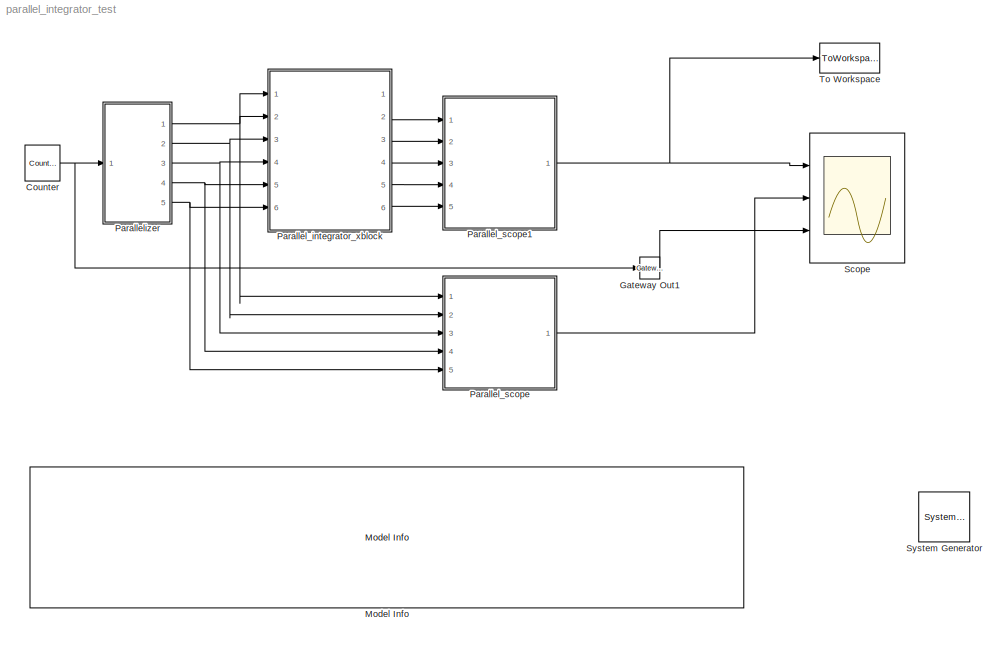
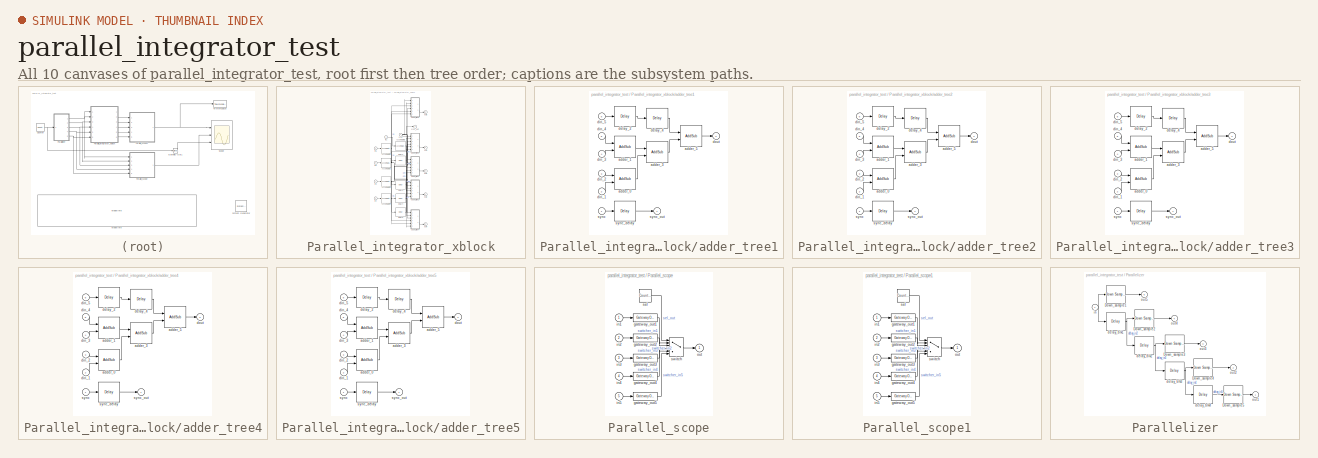
[diagram: thumbnail index - all 10 canvases of the model, root first then tree order]
MODEL parallel_integrator_test
KIND model
BLOCK [Reference]  System Generator  REF=xbsIndex_r4/ System Generator
  AttributesFormatString = System\\nGenerator
  FunctionWithSeparateData = off
  Ports = []
  RTWMemSecDataConstants = Inherit from model
  RTWMemSecDataInternal = Inherit from model
  RTWMemSecDataParameters = Inherit from model
  RTWMemSecFuncExecute = Inherit from model
  RTWMemSecFuncInitTerm = Inherit from model
  SID = 6
  ShowPortLabels = FromPortIcon
  SourceBlock = xbsIndex_r4/ System Generator
  SourceType = Xilinx System Generator Block
  SystemSampleTime = -1
  Tag = genX
  UserData = DataTag0
  UserDataPersistent = on
  block_type = sysgen
  block_version = 11.4
  clock_wrapper = Clock Enables
  core_generation = According to Block Masks
  dbl_ovrd = According to Block Masks
  dcm_input_clock_period = 10
  deprecated_control = off
  directory = ./netlist
  eval_field = 0
  has_advanced_control = 0
  incr_netlist = off
  infoedit = System Generator
  package = ff1156
  part = xc6vsx315t
  run_coregen = off
  sg_icon_stat = 51,50,-1,-1,red,beige,0,07734,right,
  sg_mask_display = fprintf('','COMMENT: begin icon graphics');\npatch([0 1 1 0 ],[0 0 1 1 ],[0.93 0.92 0.86]);\npatch([0.235294 0.0784314 0.313725 0.0784314 0.235294 0.490196 0.568627 0.647059 0.921569 0.705882 0.490196 0.333333 0.568627 0.333333 0.490196 0.705882 0.921569 0.647059 0.568627 0.490196 0.235294 ],[0.1 0.26 0.5 0.74 0.9 0.9 0.82 0.9 0.9 0.68 0.9 0.74 0.5 0.26 0.1 0.32 0.1 0.1 0.18 0.1 0.1 ],[0.6 0.2 0.2...<+163ch>
  sggui_pos = -1,-1,-1,-1
  simulink_period = 1
  speed = -3
  synthesis_tool = XST
  sysclk_period = 10
  testbench = off
  trim_vbits = Everywhere in SubSystem
  xilinxfamily = Virtex6
BLOCK [Reference] Counter  REF=xbsIndex_r4/Counter
  Ports = [0, 1]
  SID = 16
  SourceBlock = xbsIndex_r4/Counter
  SourceType = Xilinx Counter Block
  arith_type = Unsigned
  bin_pt = 0
  block_type = counter
  block_version = 11.4
  cnt_by_val = 1
  cnt_to = Inf
  cnt_type = Free Running
  dbl_ovrd = off
  en = off
  explicit_period = on
  has_advanced_control = 0
  implementation = Fabric
  infoedit = Hardware notes: Free running counters are the least expensive in hardware.  A count limited counter is implemented by combining a counter with a comparator.
  load_pin = off
  n_bits = 8
  operation = Up
  period = 1
  rst = off
  sg_icon_stat = 35,36,0,1,white,blue,0,335d209d,right,
  sg_mask_display = fprintf('','COMMENT: begin icon graphics');\npatch([0 1 1 0 ],[0 0 1 1 ],[0.77 0.82 0.91]);\npatch([0.228571 0.0571429 0.285714 0.0571429 0.228571 0.485714 0.571429 0.657143 0.942857 0.714286 0.514286 0.371429 0.6 0.371429 0.514286 0.714286 0.942857 0.657143 0.571429 0.485714 0.228571 ],[0.111111 0.277778 0.5 0.722222 0.888889 0.888889 0.805556 0.888889 0.888889 0.666667 0.861111 0.722222 0.5 0.27...<+293ch>
  sggui_pos = 58,-144,419,748
  start_count = 0
  use_behavioral_HDL = off
  xl_area = [0,0,0,0,0,0,0]
  xl_use_area = off
BLOCK [Reference] Gateway Out1  REF=xbsIndex_r4/Gateway Out
  LOCs = {}
  Ports = [1, 1]
  SID = 17
  SourceBlock = xbsIndex_r4/Gateway Out
  SourceType = Xilinx Gateway Out Block
  block_type = gatewayout
  block_version = 11.4
  has_advanced_control = 0
  hdl_port = on
  infoedit = Gateway out block.  Converts Xilinx fixed point inputs into ouputs of type Simulink integer, double, or fixed point.<br><br>Hardware notes:  In hardware these blocks become top level output ports or are discarded, depending on how they are configured.  <repeated x11 — deduplicated; at blocks: Gateway Out1, gateway_out1, gateway_out2, gateway_out3, gateway_out4, gateway_out5>
  locs_specified = off
  sg_icon_stat = 20,22,1,1,white,yellow,0,cc31b7ac,right,
  sg_mask_display = fprintf('','COMMENT: begin icon graphics');\npatch([0 1 1 0 ],[0 0 1 1 ],[0.95 0.93 0.65]);\npatch([0.2 0.05 0.3 0.05 0.2 0.45 0.5 0.55 0.85 0.65 0.45 0.3 0.55 0.3 0.45 0.65 0.85 0.55 0.5 0.45 0.2 ],[0.136364 0.272727 0.5 0.727273 0.863636 0.863636 0.818182 0.863636 0.863636 0.681818 0.863636 0.727273 0.5 0.272727 0.136364 0.318182 0.136364 0.136364 0.181818 0.136364 0.136364 ],[0.98 0.96 0.92]);\...<+284ch>
  sggui_pos = -1,-1,-1,-1
  timing_constraint = None
  xl_area = [0,0,0,0,0,0,0]
  xl_use_area = off
BLOCK [Reference] Model Info  REF=simulink/Model-Wide\nUtilities/Model Info
  BlockCM = None
  DisplayStringWithTags = September 28, 2011:\n\nTest passed. \n\nThe counter generates 1-D discrete samples at 1 sample/clk rate. The parallelizer outputs 4-parallel outputs\nat 4 sample/clk.\n\nParallel Integrator.\n\n\nAlso tested: 5-parallel inputs, various overflow options, various add_latency, varoius bitwidth/bin_pt
  Frame = on
  FunctionWithSeparateData = off
  HorizontalTextAlignment = Left
  InitialBlockCM = None
  LeftAlignmentValue = 0.02
  MaskDisplayString = September 28, 2011:\\n\\nTest passed. \\n\\nThe counter generates 1-D discrete samples at 1 sample/clk rate. The parallelizer outputs 4-parallel outputs\\nat 4 sample/clk.\\n\\nParallel Integrator.<path> tested: 5-parallel inputs, various overflow options, various add_latency, varoius bitwidth/bin_pt
  Ports = []
  RTWMemSecDataConstants = Inherit from model
  RTWMemSecDataInternal = Inherit from model
  RTWMemSecDataParameters = Inherit from model
  RTWMemSecFuncExecute = Inherit from model
  RTWMemSecFuncInitTerm = Inherit from model
  SID = 11
  ShowPortLabels = FromPortIcon
  SourceBlock = simulink/Model-Wide\nUtilities/Model Info
  SourceBlockDiagram = parallel_integrator_test
  SourceType = CMBlock
  SystemSampleTime = -1
  TagMaxNumber = 20
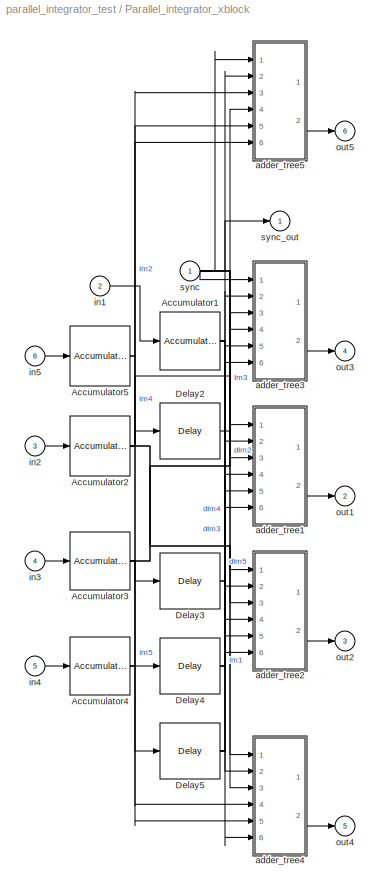
BLOCK [SubSystem] Parallel_integrator_xblock
  AncestorBlock = filters_internal/Parallel_integrator_xblock
  AttributesFormatString = Add Latency = 5\nBitwidth = 12 bin_pt = 0\nSaturate
  FunctionWithSeparateData = off
  MaskCallbackString = ||||
  MaskDescription = Parallely Integrate.
  MaskEnableString = on,on,on,on,on
  MaskHideContents = off
  MaskIconFrame = on
  MaskIconOpaque = on
  MaskIconRotate = none
  MaskIconUnits = autoscale
  MaskInitialization = config.source=str2func('parallel_integrator_init_xblock');\nconfig.depend=get_dependlist('parallel_integrator');\nconfig.toplevel=gcb;\nset_param(gcb,'LinkStatus','inactive');\nxBlock(config, {config.toplevel,...\n    'n_inputs', n_inputs, ...\n    'n_bits', n_bits, ...\n    'bin_pt', bin_pt, ...\n    'add_latency', add_latency, ...\n    'overflow', overflow});
  MaskPortRotate = default
  MaskPromptString = number of inputs|bitwidth of input/output|binary point|Overflow|Add Latency
  MaskStyleString = edit,edit,edit,popup(Wrap|Saturate|Flag as error),edit
  MaskToolTipString = on,on,on,on,on
  MaskTunableValueString = on,on,on,on,on
  MaskType = Parallel Integrator (xBlock)
  MaskValueString = 5|12|0|Saturate|5
  MaskVariables = n_inputs=@1;n_bits=@2;bin_pt=@3;overflow=&4;add_latency=@5;
  MaskVisibilityString = on,on,on,on,on
  MinAlgLoopOccurrences = off
  Opaque = off
  Ports = [6, 6]
  PropExecContextOutsideSubsystem = off
  RTWSystemCode = Auto
  RequestExecContextInheritance = off
  SID = 29
  UserData = DataTag1
  UserDataPersistent = on
BLOCK [Reference] Parallel_integrator_xblock/Accumulator1  REF=xbsIndex_r4/Accumulator
  Ports = [1, 1]
  SID = 2114
  SourceBlock = xbsIndex_r4/Accumulator
  SourceType = Xilinx Accumulator Block
  block_type = accum
  block_version = 11.4
  dbl_ovrd = off
  en = off
  has_advanced_control = 0
  hasbypass = off
  implementation = Fabric
  infoedit = Adder or subtracter-based accumulator.   Output type and binary point position match the input.<br><br>Hardware notes: When \"Reinitialize with input 'b' on reset\" is selected, the accumulator is forced to run at the system rate even if the input 'b' is running at a slower rate.  <repeated x5 — deduplicated; at blocks: Accumulator1, Accumulator2, Accumulator3, Accumulator4, Accumulator5>
  n_bits = 12
  operation = Add
  overflow = Saturate
  rst = off
  scale = 1
  sg_icon_stat = 60,58,1,1,white,blue,0,75f017e6,right,
  sg_mask_display = fprintf('','COMMENT: begin icon graphics');\npatch([0 1 1 0 ],[0 0 1 1 ],[0.77 0.82 0.91]);\npatch([0.25 0.0833333 0.316667 0.0833333 0.25 0.5 0.566667 0.633333 0.9 0.683333 0.483333 0.333333 0.566667 0.333333 0.483333 0.683333 0.9 0.633333 0.566667 0.5 0.25 ],[0.103448 0.275862 0.517241 0.758621 0.931034 0.931034 0.862069 0.931034 0.931034 0.706897 0.913793 0.758621 0.517241 0.275862 0.12069 0.32...<+316ch>  <repeated x3 — deduplicated; at blocks: Accumulator1, Accumulator3, Accumulator4>
  sggui_pos = -1,-1,-1,-1
  use_behavioral_HDL = on
  xl_area = [0,0,0,0,0,0,0]
  xl_use_area = off
BLOCK [Reference] Parallel_integrator_xblock/Accumulator2  REF=xbsIndex_r4/Accumulator
  Ports = [1, 1]
  SID = 2115
  SourceBlock = xbsIndex_r4/Accumulator
  SourceType = Xilinx Accumulator Block
  block_type = accum
  block_version = 11.4
  dbl_ovrd = off
  en = off
  has_advanced_control = 0
  hasbypass = off
  implementation = Fabric
  n_bits = 12
  operation = Add
  overflow = Saturate
  rst = off
  scale = 1
  sg_icon_stat = 60,60,1,1,white,blue,0,75f017e6,right,
  sg_mask_display = fprintf('','COMMENT: begin icon graphics');\npatch([0 1 1 0 ],[0 0 1 1 ],[0.77 0.82 0.91]);\npatch([0.233333 0.0666667 0.3 0.0666667 0.233333 0.5 0.566667 0.633333 0.916667 0.7 0.483333 0.333333 0.583333 0.333333 0.483333 0.7 0.916667 0.633333 0.566667 0.5 0.233333 ],[0.1 0.266667 0.5 0.733333 0.9 0.9 0.833333 0.9 0.9 0.683333 0.9 0.75 0.5 0.25 0.1 0.316667 0.1 0.1 0.166667 0.1 0.1 ],[0.98 0.96 0....<+251ch>
  sggui_pos = -1,-1,-1,-1
  use_behavioral_HDL = on
  xl_area = [0,0,0,0,0,0,0]
  xl_use_area = off
BLOCK [Reference] Parallel_integrator_xblock/Accumulator3  REF=xbsIndex_r4/Accumulator
  Ports = [1, 1]
  SID = 2116
  SourceBlock = xbsIndex_r4/Accumulator
  SourceType = Xilinx Accumulator Block
  block_type = accum
  block_version = 11.4
  dbl_ovrd = off
  en = off
  has_advanced_control = 0
  hasbypass = off
  implementation = Fabric
  n_bits = 12
  operation = Add
  overflow = Saturate
  rst = off
  scale = 1
  sg_icon_stat = 60,58,1,1,white,blue,0,75f017e6,right,
  sggui_pos = -1,-1,-1,-1
  use_behavioral_HDL = on
  xl_area = [0,0,0,0,0,0,0]
  xl_use_area = off
BLOCK [Reference] Parallel_integrator_xblock/Accumulator4  REF=xbsIndex_r4/Accumulator
  Ports = [1, 1]
  SID = 2117
  SourceBlock = xbsIndex_r4/Accumulator
  SourceType = Xilinx Accumulator Block
  block_type = accum
  block_version = 11.4
  dbl_ovrd = off
  en = off
  has_advanced_control = 0
  hasbypass = off
  implementation = Fabric
  n_bits = 12
  operation = Add
  overflow = Saturate
  rst = off
  scale = 1
  sg_icon_stat = 60,58,1,1,white,blue,0,75f017e6,right,
  sggui_pos = -1,-1,-1,-1
  use_behavioral_HDL = on
  xl_area = [0,0,0,0,0,0,0]
  xl_use_area = off
BLOCK [Reference] Parallel_integrator_xblock/Accumulator5  REF=xbsIndex_r4/Accumulator
  Ports = [1, 1]
  SID = 2118
  SourceBlock = xbsIndex_r4/Accumulator
  SourceType = Xilinx Accumulator Block
  block_type = accum
  block_version = 11.4
  dbl_ovrd = off
  en = off
  has_advanced_control = 0
  hasbypass = off
  implementation = Fabric
  n_bits = 12
  operation = Add
  overflow = Saturate
  rst = off
  scale = 1
  sg_icon_stat = 60,60,1,1,white,blue,0,75f017e6,right,
  sg_mask_display = fprintf('','COMMENT: begin icon graphics');\npatch([0 1 1 0 ],[0 0 1 1 ],[0.77 0.82 0.91]);\npatch([0.233333 0.0666667 0.3 0.0666667 0.233333 0.5 0.566667 0.633333 0.916667 0.7 0.483333 0.333333 0.583333 0.333333 0.483333 0.7 0.916667 0.633333 0.566667 0.5 0.233333 ],[0.1 0.266667 0.5 0.733333 0.9 0.9 0.833333 0.9 0.9 0.683333 0.9 0.75 0.5 0.25 0.1 0.316667 0.1 0.1 0.166667 0.1 0.1 ],[0.98 0.96 0....<+251ch>
  sggui_pos = -1,-1,-1,-1
  use_behavioral_HDL = on
  xl_area = [0,0,0,0,0,0,0]
  xl_use_area = off
BLOCK [Reference] Parallel_integrator_xblock/Delay2  REF=xbsIndex_r4/Delay
  Ports = [1, 1]
  SID = 2119
  SourceBlock = xbsIndex_r4/Delay
  SourceType = Xilinx Delay Block
  block_type = delay
  block_version = 11.4
  dbl_ovrd = off
  en = off
  has_advanced_control = 0
  infoedit = Hardware notes: A delay line is a chain, each link of which is an SRL16 followed by a flip-flop.
  latency = 1
  reg_retiming = off
  sg_icon_stat = 60,56,1,1,white,blue,0,07b98262,right,
  sg_mask_display = fprintf('','COMMENT: begin icon graphics');\npatch([0 1 1 0 ],[0 0 1 1 ],[0.77 0.82 0.91]);\npatch([0.25 0.1 0.316667 0.1 0.25 0.5 0.566667 0.633333 0.9 0.683333 0.483333 0.333333 0.533333 0.333333 0.483333 0.683333 0.9 0.633333 0.566667 0.5 0.25 ],[0.107143 0.267857 0.5 0.732143 0.892857 0.892857 0.821429 0.892857 0.892857 0.660714 0.875 0.714286 0.5 0.285714 0.125 0.339286 0.107143 0.107143 0.17...<+249ch>  <repeated x18 — deduplicated; at blocks: Delay2, Delay3, Delay4, Delay5, delay_2, delay_4, delay_blk1, delay_blk2, delay_blk3, delay_blk4>
  sggui_pos = -1,-1,-1,-1
  xl_area = [0,0,0,0,0,0,0]
  xl_use_area = off
BLOCK [Reference] Parallel_integrator_xblock/Delay3  REF=xbsIndex_r4/Delay
  Ports = [1, 1]
  SID = 2120
  SourceBlock = xbsIndex_r4/Delay
  SourceType = Xilinx Delay Block
  block_type = delay
  block_version = 11.4
  dbl_ovrd = off
  en = off
  has_advanced_control = 0
  infoedit = Hardware notes: A delay line is a chain, each link of which is an SRL16 followed by a flip-flop.
  latency = 1
  reg_retiming = off
  sg_icon_stat = 60,56,1,1,white,blue,0,07b98262,right,
  sggui_pos = -1,-1,-1,-1
  xl_area = [0,0,0,0,0,0,0]
  xl_use_area = off
BLOCK [Reference] Parallel_integrator_xblock/Delay4  REF=xbsIndex_r4/Delay
  Ports = [1, 1]
  SID = 2121
  SourceBlock = xbsIndex_r4/Delay
  SourceType = Xilinx Delay Block
  block_type = delay
  block_version = 11.4
  dbl_ovrd = off
  en = off
  has_advanced_control = 0
  infoedit = Hardware notes: A delay line is a chain, each link of which is an SRL16 followed by a flip-flop.
  latency = 1
  reg_retiming = off
  sg_icon_stat = 60,56,1,1,white,blue,0,07b98262,right,
  sggui_pos = -1,-1,-1,-1
  xl_area = [0,0,0,0,0,0,0]
  xl_use_area = off
BLOCK [Reference] Parallel_integrator_xblock/Delay5  REF=xbsIndex_r4/Delay
  Ports = [1, 1]
  SID = 2122
  SourceBlock = xbsIndex_r4/Delay
  SourceType = Xilinx Delay Block
  block_type = delay
  block_version = 11.4
  dbl_ovrd = off
  en = off
  has_advanced_control = 0
  infoedit = Hardware notes: A delay line is a chain, each link of which is an SRL16 followed by a flip-flop.
  latency = 1
  reg_retiming = off
  sg_icon_stat = 60,56,1,1,white,blue,0,07b98262,right,
  sggui_pos = -1,-1,-1,-1
  xl_area = [0,0,0,0,0,0,0]
  xl_use_area = off
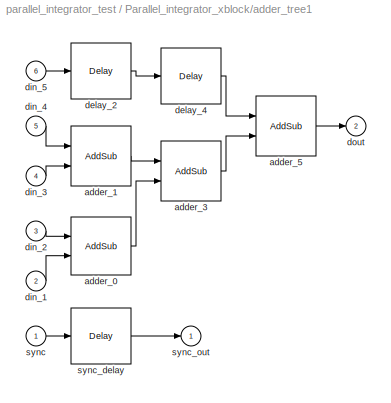
BLOCK [SubSystem] Parallel_integrator_xblock/adder_tree1
  FunctionWithSeparateData = off
  MaskHideContents = off
  MinAlgLoopOccurrences = off
  Opaque = off
  Ports = [6, 2]
  PropExecContextOutsideSubsystem = off
  RTWSystemCode = Auto
  RequestExecContextInheritance = off
  SID = 2123
BLOCK [Reference] Parallel_integrator_xblock/adder_tree1/adder_0  REF=xbsIndex_r4/AddSub
  Ports = [2, 1]
  SID = 2134
  SourceBlock = xbsIndex_r4/AddSub
  SourceType = Xilinx Adder/Subtracter Block
  arith_type = Unsigned
  bin_pt = 14
  block_type = addsub
  block_version = 11.4
  dbl_ovrd = off
  en = off
  has_advanced_control = 0
  hw_selection = Fabric
  latency = 5
  mode = Addition
  n_bits = 16
  overflow = Wrap
  pipelined = off
  precision = Full
  quantization = Round  (unbiased: +/- Inf)
  sg_icon_stat = 60,58,2,1,white,blue,0,737c9dc5,right,
  sg_mask_display = fprintf('','COMMENT: begin icon graphics');\npatch([0 1 1 0 ],[0 0 1 1 ],[0.77 0.82 0.91]);\npatch([0.25 0.0833333 0.316667 0.0833333 0.25 0.5 0.566667 0.633333 0.9 0.683333 0.483333 0.333333 0.566667 0.333333 0.483333 0.683333 0.9 0.633333 0.566667 0.5 0.25 ],[0.103448 0.275862 0.517241 0.758621 0.931034 0.931034 0.862069 0.931034 0.931034 0.706897 0.913793 0.758621 0.517241 0.275862 0.12069 0.32...<+455ch>  <repeated x5 — deduplicated; at blocks: adder_0>
  sggui_pos = -1,-1,-1,-1
  use_behavioral_HDL = on
  use_carryin = off
  use_carryout = off
  xl_area = [0,0,0,0,0,0,0]
  xl_use_area = off
BLOCK [Reference] Parallel_integrator_xblock/adder_tree1/adder_1  REF=xbsIndex_r4/AddSub
  Ports = [2, 1]
  SID = 2135
  SourceBlock = xbsIndex_r4/AddSub
  SourceType = Xilinx Adder/Subtracter Block
  arith_type = Unsigned
  bin_pt = 14
  block_type = addsub
  block_version = 11.4
  dbl_ovrd = off
  en = off
  has_advanced_control = 0
  hw_selection = Fabric
  latency = 5
  mode = Addition
  n_bits = 16
  overflow = Wrap
  pipelined = off
  precision = Full
  quantization = Round  (unbiased: +/- Inf)
  sg_icon_stat = 60,60,2,1,white,blue,0,737c9dc5,right,
  sg_mask_display = fprintf('','COMMENT: begin icon graphics');\npatch([0 1 1 0 ],[0 0 1 1 ],[0.77 0.82 0.91]);\npatch([0.233333 0.0666667 0.3 0.0666667 0.233333 0.5 0.566667 0.633333 0.916667 0.7 0.483333 0.333333 0.583333 0.333333 0.483333 0.7 0.916667 0.633333 0.566667 0.5 0.233333 ],[0.1 0.266667 0.5 0.733333 0.9 0.9 0.833333 0.9 0.9 0.683333 0.9 0.75 0.5 0.25 0.1 0.316667 0.1 0.1 0.166667 0.1 0.1 ],[0.98 0.96 0....<+390ch>  <repeated x15 — deduplicated; at blocks: adder_1, adder_3, adder_5>
  sggui_pos = -1,-1,-1,-1
  use_behavioral_HDL = on
  use_carryin = off
  use_carryout = off
  xl_area = [0,0,0,0,0,0,0]
  xl_use_area = off
BLOCK [Reference] Parallel_integrator_xblock/adder_tree1/adder_3  REF=xbsIndex_r4/AddSub
  Ports = [2, 1]
  SID = 2137
  SourceBlock = xbsIndex_r4/AddSub
  SourceType = Xilinx Adder/Subtracter Block
  arith_type = Unsigned
  bin_pt = 14
  block_type = addsub
  block_version = 11.4
  dbl_ovrd = off
  en = off
  has_advanced_control = 0
  hw_selection = Fabric
  latency = 5
  mode = Addition
  n_bits = 16
  overflow = Wrap
  pipelined = off
  precision = Full
  quantization = Round  (unbiased: +/- Inf)
  sg_icon_stat = 60,60,2,1,white,blue,0,737c9dc5,right,
  sggui_pos = -1,-1,-1,-1
  use_behavioral_HDL = on
  use_carryin = off
  use_carryout = off
  xl_area = [0,0,0,0,0,0,0]
  xl_use_area = off
BLOCK [Reference] Parallel_integrator_xblock/adder_tree1/adder_5  REF=xbsIndex_r4/AddSub
  Ports = [2, 1]
  SID = 2139
  SourceBlock = xbsIndex_r4/AddSub
  SourceType = Xilinx Adder/Subtracter Block
  arith_type = Unsigned
  bin_pt = 14
  block_type = addsub
  block_version = 11.4
  dbl_ovrd = off
  en = off
  has_advanced_control = 0
  hw_selection = Fabric
  latency = 5
  mode = Addition
  n_bits = 16
  overflow = Wrap
  pipelined = off
  precision = Full
  quantization = Round  (unbiased: +/- Inf)
  sg_icon_stat = 60,60,2,1,white,blue,0,737c9dc5,right,
  sggui_pos = -1,-1,-1,-1
  use_behavioral_HDL = on
  use_carryin = off
  use_carryout = off
  xl_area = [0,0,0,0,0,0,0]
  xl_use_area = off
BLOCK [Reference] Parallel_integrator_xblock/adder_tree1/delay_2  REF=xbsIndex_r4/Delay
  Ports = [1, 1]
  SID = 2136
  SourceBlock = xbsIndex_r4/Delay
  SourceType = Xilinx Delay Block
  block_type = delay
  block_version = 11.4
  dbl_ovrd = off
  en = off
  has_advanced_control = 0
  infoedit = Hardware notes: A delay line is a chain, each link of which is an SRL16 followed by a flip-flop.
  latency = 5
  reg_retiming = off
  sg_icon_stat = 60,56,1,1,white,blue,0,ec356abf,right,
  sggui_pos = -1,-1,-1,-1
  xl_area = [0,0,0,0,0,0,0]
  xl_use_area = off
BLOCK [Reference] Parallel_integrator_xblock/adder_tree1/delay_4  REF=xbsIndex_r4/Delay
  Ports = [1, 1]
  SID = 2138
  SourceBlock = xbsIndex_r4/Delay
  SourceType = Xilinx Delay Block
  block_type = delay
  block_version = 11.4
  dbl_ovrd = off
  en = off
  has_advanced_control = 0
  infoedit = Hardware notes: A delay line is a chain, each link of which is an SRL16 followed by a flip-flop.
  latency = 5
  reg_retiming = off
  sg_icon_stat = 60,56,1,1,white,blue,0,ec356abf,right,
  sggui_pos = -1,-1,-1,-1
  xl_area = [0,0,0,0,0,0,0]
  xl_use_area = off
BLOCK [Inport] Parallel_integrator_xblock/adder_tree1/din_1
  IconDisplay = Port number
  Port = 2
  SID = 2125
BLOCK [Inport] Parallel_integrator_xblock/adder_tree1/din_2
  IconDisplay = Port number
  Port = 3
  SID = 2126
BLOCK [Inport] Parallel_integrator_xblock/adder_tree1/din_3
  IconDisplay = Port number
  Port = 4
  SID = 2127
BLOCK [Inport] Parallel_integrator_xblock/adder_tree1/din_4
  IconDisplay = Port number
  Port = 5
  SID = 2128
BLOCK [Inport] Parallel_integrator_xblock/adder_tree1/din_5
  IconDisplay = Port number
  Port = 6
  SID = 2129
BLOCK [Outport] Parallel_integrator_xblock/adder_tree1/dout
  IconDisplay = Port number
  Port = 2
  SID = 2131
BLOCK [Inport] Parallel_integrator_xblock/adder_tree1/sync
  IconDisplay = Port number
  SID = 2124
BLOCK [Reference] Parallel_integrator_xblock/adder_tree1/sync_delay  REF=xbsIndex_r4/Delay
  Ports = [1, 1]
  SID = 2132
  SourceBlock = xbsIndex_r4/Delay
  SourceType = Xilinx Delay Block
  block_type = delay
  block_version = 11.4
  dbl_ovrd = off
  en = off
  has_advanced_control = 0
  infoedit = Hardware notes: A delay line is a chain, each link of which is an SRL16 followed by a flip-flop.
  latency = 15
  reg_retiming = off
  sg_icon_stat = 60,56,1,1,white,blue,0,c21c4c41,right,
  sg_mask_display = fprintf('','COMMENT: begin icon graphics');\npatch([0 1 1 0 ],[0 0 1 1 ],[0.77 0.82 0.91]);\npatch([0.25 0.1 0.316667 0.1 0.25 0.5 0.566667 0.633333 0.9 0.683333 0.483333 0.333333 0.533333 0.333333 0.483333 0.683333 0.9 0.633333 0.566667 0.5 0.25 ],[0.107143 0.267857 0.5 0.732143 0.892857 0.892857 0.821429 0.892857 0.892857 0.660714 0.875 0.714286 0.5 0.285714 0.125 0.339286 0.107143 0.107143 0.17...<+250ch>  <repeated x5 — deduplicated; at blocks: sync_delay>
  sggui_pos = -1,-1,-1,-1
  xl_area = [0,0,0,0,0,0,0]
  xl_use_area = off
BLOCK [Outport] Parallel_integrator_xblock/adder_tree1/sync_out
  IconDisplay = Port number
  SID = 2130
BLOCK [SubSystem] Parallel_integrator_xblock/adder_tree2
  FunctionWithSeparateData = off
  MaskHideContents = off
  MinAlgLoopOccurrences = off
  Opaque = off
  Ports = [6, 2]
  PropExecContextOutsideSubsystem = off
  RTWSystemCode = Auto
  RequestExecContextInheritance = off
  SID = 2140
BLOCK [Reference] Parallel_integrator_xblock/adder_tree2/adder_0  REF=xbsIndex_r4/AddSub
  Ports = [2, 1]
  SID = 2151
  SourceBlock = xbsIndex_r4/AddSub
  SourceType = Xilinx Adder/Subtracter Block
  arith_type = Unsigned
  bin_pt = 14
  block_type = addsub
  block_version = 11.4
  dbl_ovrd = off
  en = off
  has_advanced_control = 0
  hw_selection = Fabric
  latency = 5
  mode = Addition
  n_bits = 16
  overflow = Wrap
  pipelined = off
  precision = Full
  quantization = Round  (unbiased: +/- Inf)
  sg_icon_stat = 60,58,2,1,white,blue,0,737c9dc5,right,
  sggui_pos = -1,-1,-1,-1
  use_behavioral_HDL = on
  use_carryin = off
  use_carryout = off
  xl_area = [0,0,0,0,0,0,0]
  xl_use_area = off
BLOCK [Reference] Parallel_integrator_xblock/adder_tree2/adder_1  REF=xbsIndex_r4/AddSub
  Ports = [2, 1]
  SID = 2152
  SourceBlock = xbsIndex_r4/AddSub
  SourceType = Xilinx Adder/Subtracter Block
  arith_type = Unsigned
  bin_pt = 14
  block_type = addsub
  block_version = 11.4
  dbl_ovrd = off
  en = off
  has_advanced_control = 0
  hw_selection = Fabric
  latency = 5
  mode = Addition
  n_bits = 16
  overflow = Wrap
  pipelined = off
  precision = Full
  quantization = Round  (unbiased: +/- Inf)
  sg_icon_stat = 60,60,2,1,white,blue,0,737c9dc5,right,
  sggui_pos = -1,-1,-1,-1
  use_behavioral_HDL = on
  use_carryin = off
  use_carryout = off
  xl_area = [0,0,0,0,0,0,0]
  xl_use_area = off
BLOCK [Reference] Parallel_integrator_xblock/adder_tree2/adder_3  REF=xbsIndex_r4/AddSub
  Ports = [2, 1]
  SID = 2154
  SourceBlock = xbsIndex_r4/AddSub
  SourceType = Xilinx Adder/Subtracter Block
  arith_type = Unsigned
  bin_pt = 14
  block_type = addsub
  block_version = 11.4
  dbl_ovrd = off
  en = off
  has_advanced_control = 0
  hw_selection = Fabric
  latency = 5
  mode = Addition
  n_bits = 16
  overflow = Wrap
  pipelined = off
  precision = Full
  quantization = Round  (unbiased: +/- Inf)
  sg_icon_stat = 60,60,2,1,white,blue,0,737c9dc5,right,
  sggui_pos = -1,-1,-1,-1
  use_behavioral_HDL = on
  use_carryin = off
  use_carryout = off
  xl_area = [0,0,0,0,0,0,0]
  xl_use_area = off
BLOCK [Reference] Parallel_integrator_xblock/adder_tree2/adder_5  REF=xbsIndex_r4/AddSub
  Ports = [2, 1]
  SID = 2156
  SourceBlock = xbsIndex_r4/AddSub
  SourceType = Xilinx Adder/Subtracter Block
  arith_type = Unsigned
  bin_pt = 14
  block_type = addsub
  block_version = 11.4
  dbl_ovrd = off
  en = off
  has_advanced_control = 0
  hw_selection = Fabric
  latency = 5
  mode = Addition
  n_bits = 16
  overflow = Wrap
  pipelined = off
  precision = Full
  quantization = Round  (unbiased: +/- Inf)
  sg_icon_stat = 60,60,2,1,white,blue,0,737c9dc5,right,
  sggui_pos = -1,-1,-1,-1
  use_behavioral_HDL = on
  use_carryin = off
  use_carryout = off
  xl_area = [0,0,0,0,0,0,0]
  xl_use_area = off
BLOCK [Reference] Parallel_integrator_xblock/adder_tree2/delay_2  REF=xbsIndex_r4/Delay
  Ports = [1, 1]
  SID = 2153
  SourceBlock = xbsIndex_r4/Delay
  SourceType = Xilinx Delay Block
  block_type = delay
  block_version = 11.4
  dbl_ovrd = off
  en = off
  has_advanced_control = 0
  infoedit = Hardware notes: A delay line is a chain, each link of which is an SRL16 followed by a flip-flop.
  latency = 5
  reg_retiming = off
  sg_icon_stat = 60,56,1,1,white,blue,0,ec356abf,right,
  sggui_pos = -1,-1,-1,-1
  xl_area = [0,0,0,0,0,0,0]
  xl_use_area = off
BLOCK [Reference] Parallel_integrator_xblock/adder_tree2/delay_4  REF=xbsIndex_r4/Delay
  Ports = [1, 1]
  SID = 2155
  SourceBlock = xbsIndex_r4/Delay
  SourceType = Xilinx Delay Block
  block_type = delay
  block_version = 11.4
  dbl_ovrd = off
  en = off
  has_advanced_control = 0
  infoedit = Hardware notes: A delay line is a chain, each link of which is an SRL16 followed by a flip-flop.
  latency = 5
  reg_retiming = off
  sg_icon_stat = 60,56,1,1,white,blue,0,ec356abf,right,
  sggui_pos = -1,-1,-1,-1
  xl_area = [0,0,0,0,0,0,0]
  xl_use_area = off
BLOCK [Inport] Parallel_integrator_xblock/adder_tree2/din_1
  IconDisplay = Port number
  Port = 2
  SID = 2142
BLOCK [Inport] Parallel_integrator_xblock/adder_tree2/din_2
  IconDisplay = Port number
  Port = 3
  SID = 2143
BLOCK [Inport] Parallel_integrator_xblock/adder_tree2/din_3
  IconDisplay = Port number
  Port = 4
  SID = 2144
BLOCK [Inport] Parallel_integrator_xblock/adder_tree2/din_4
  IconDisplay = Port number
  Port = 5
  SID = 2145
BLOCK [Inport] Parallel_integrator_xblock/adder_tree2/din_5
  IconDisplay = Port number
  Port = 6
  SID = 2146
BLOCK [Outport] Parallel_integrator_xblock/adder_tree2/dout
  IconDisplay = Port number
  Port = 2
  SID = 2148
BLOCK [Inport] Parallel_integrator_xblock/adder_tree2/sync
  IconDisplay = Port number
  SID = 2141
BLOCK [Reference] Parallel_integrator_xblock/adder_tree2/sync_delay  REF=xbsIndex_r4/Delay
  Ports = [1, 1]
  SID = 2149
  SourceBlock = xbsIndex_r4/Delay
  SourceType = Xilinx Delay Block
  block_type = delay
  block_version = 11.4
  dbl_ovrd = off
  en = off
  has_advanced_control = 0
  infoedit = Hardware notes: A delay line is a chain, each link of which is an SRL16 followed by a flip-flop.
  latency = 15
  reg_retiming = off
  sg_icon_stat = 60,56,1,1,white,blue,0,c21c4c41,right,
  sggui_pos = -1,-1,-1,-1
  xl_area = [0,0,0,0,0,0,0]
  xl_use_area = off
BLOCK [Outport] Parallel_integrator_xblock/adder_tree2/sync_out
  IconDisplay = Port number
  SID = 2147
BLOCK [SubSystem] Parallel_integrator_xblock/adder_tree3
  FunctionWithSeparateData = off
  MaskHideContents = off
  MinAlgLoopOccurrences = off
  Opaque = off
  Ports = [6, 2]
  PropExecContextOutsideSubsystem = off
  RTWSystemCode = Auto
  RequestExecContextInheritance = off
  SID = 2157
BLOCK [Reference] Parallel_integrator_xblock/adder_tree3/adder_0  REF=xbsIndex_r4/AddSub
  Ports = [2, 1]
  SID = 2168
  SourceBlock = xbsIndex_r4/AddSub
  SourceType = Xilinx Adder/Subtracter Block
  arith_type = Unsigned
  bin_pt = 14
  block_type = addsub
  block_version = 11.4
  dbl_ovrd = off
  en = off
  has_advanced_control = 0
  hw_selection = Fabric
  latency = 5
  mode = Addition
  n_bits = 16
  overflow = Wrap
  pipelined = off
  precision = Full
  quantization = Round  (unbiased: +/- Inf)
  sg_icon_stat = 60,58,2,1,white,blue,0,737c9dc5,right,
  sggui_pos = -1,-1,-1,-1
  use_behavioral_HDL = on
  use_carryin = off
  use_carryout = off
  xl_area = [0,0,0,0,0,0,0]
  xl_use_area = off
BLOCK [Reference] Parallel_integrator_xblock/adder_tree3/adder_1  REF=xbsIndex_r4/AddSub
  Ports = [2, 1]
  SID = 2169
  SourceBlock = xbsIndex_r4/AddSub
  SourceType = Xilinx Adder/Subtracter Block
  arith_type = Unsigned
  bin_pt = 14
  block_type = addsub
  block_version = 11.4
  dbl_ovrd = off
  en = off
  has_advanced_control = 0
  hw_selection = Fabric
  latency = 5
  mode = Addition
  n_bits = 16
  overflow = Wrap
  pipelined = off
  precision = Full
  quantization = Round  (unbiased: +/- Inf)
  sg_icon_stat = 60,60,2,1,white,blue,0,737c9dc5,right,
  sggui_pos = -1,-1,-1,-1
  use_behavioral_HDL = on
  use_carryin = off
  use_carryout = off
  xl_area = [0,0,0,0,0,0,0]
  xl_use_area = off
BLOCK [Reference] Parallel_integrator_xblock/adder_tree3/adder_3  REF=xbsIndex_r4/AddSub
  Ports = [2, 1]
  SID = 2171
  SourceBlock = xbsIndex_r4/AddSub
  SourceType = Xilinx Adder/Subtracter Block
  arith_type = Unsigned
  bin_pt = 14
  block_type = addsub
  block_version = 11.4
  dbl_ovrd = off
  en = off
  has_advanced_control = 0
  hw_selection = Fabric
  latency = 5
  mode = Addition
  n_bits = 16
  overflow = Wrap
  pipelined = off
  precision = Full
  quantization = Round  (unbiased: +/- Inf)
  sg_icon_stat = 60,60,2,1,white,blue,0,737c9dc5,right,
  sggui_pos = -1,-1,-1,-1
  use_behavioral_HDL = on
  use_carryin = off
  use_carryout = off
  xl_area = [0,0,0,0,0,0,0]
  xl_use_area = off
BLOCK [Reference] Parallel_integrator_xblock/adder_tree3/adder_5  REF=xbsIndex_r4/AddSub
  Ports = [2, 1]
  SID = 2173
  SourceBlock = xbsIndex_r4/AddSub
  SourceType = Xilinx Adder/Subtracter Block
  arith_type = Unsigned
  bin_pt = 14
  block_type = addsub
  block_version = 11.4
  dbl_ovrd = off
  en = off
  has_advanced_control = 0
  hw_selection = Fabric
  latency = 5
  mode = Addition
  n_bits = 16
  overflow = Wrap
  pipelined = off
  precision = Full
  quantization = Round  (unbiased: +/- Inf)
  sg_icon_stat = 60,60,2,1,white,blue,0,737c9dc5,right,
  sggui_pos = -1,-1,-1,-1
  use_behavioral_HDL = on
  use_carryin = off
  use_carryout = off
  xl_area = [0,0,0,0,0,0,0]
  xl_use_area = off
BLOCK [Reference] Parallel_integrator_xblock/adder_tree3/delay_2  REF=xbsIndex_r4/Delay
  Ports = [1, 1]
  SID = 2170
  SourceBlock = xbsIndex_r4/Delay
  SourceType = Xilinx Delay Block
  block_type = delay
  block_version = 11.4
  dbl_ovrd = off
  en = off
  has_advanced_control = 0
  infoedit = Hardware notes: A delay line is a chain, each link of which is an SRL16 followed by a flip-flop.
  latency = 5
  reg_retiming = off
  sg_icon_stat = 60,56,1,1,white,blue,0,ec356abf,right,
  sggui_pos = -1,-1,-1,-1
  xl_area = [0,0,0,0,0,0,0]
  xl_use_area = off
BLOCK [Reference] Parallel_integrator_xblock/adder_tree3/delay_4  REF=xbsIndex_r4/Delay
  Ports = [1, 1]
  SID = 2172
  SourceBlock = xbsIndex_r4/Delay
  SourceType = Xilinx Delay Block
  block_type = delay
  block_version = 11.4
  dbl_ovrd = off
  en = off
  has_advanced_control = 0
  infoedit = Hardware notes: A delay line is a chain, each link of which is an SRL16 followed by a flip-flop.
  latency = 5
  reg_retiming = off
  sg_icon_stat = 60,56,1,1,white,blue,0,ec356abf,right,
  sggui_pos = -1,-1,-1,-1
  xl_area = [0,0,0,0,0,0,0]
  xl_use_area = off
BLOCK [Inport] Parallel_integrator_xblock/adder_tree3/din_1
  IconDisplay = Port number
  Port = 2
  SID = 2159
BLOCK [Inport] Parallel_integrator_xblock/adder_tree3/din_2
  IconDisplay = Port number
  Port = 3
  SID = 2160
BLOCK [Inport] Parallel_integrator_xblock/adder_tree3/din_3
  IconDisplay = Port number
  Port = 4
  SID = 2161
BLOCK [Inport] Parallel_integrator_xblock/adder_tree3/din_4
  IconDisplay = Port number
  Port = 5
  SID = 2162
BLOCK [Inport] Parallel_integrator_xblock/adder_tree3/din_5
  IconDisplay = Port number
  Port = 6
  SID = 2163
BLOCK [Outport] Parallel_integrator_xblock/adder_tree3/dout
  IconDisplay = Port number
  Port = 2
  SID = 2165
BLOCK [Inport] Parallel_integrator_xblock/adder_tree3/sync
  IconDisplay = Port number
  SID = 2158
BLOCK [Reference] Parallel_integrator_xblock/adder_tree3/sync_delay  REF=xbsIndex_r4/Delay
  Ports = [1, 1]
  SID = 2166
  SourceBlock = xbsIndex_r4/Delay
  SourceType = Xilinx Delay Block
  block_type = delay
  block_version = 11.4
  dbl_ovrd = off
  en = off
  has_advanced_control = 0
  infoedit = Hardware notes: A delay line is a chain, each link of which is an SRL16 followed by a flip-flop.
  latency = 15
  reg_retiming = off
  sg_icon_stat = 60,56,1,1,white,blue,0,c21c4c41,right,
  sggui_pos = -1,-1,-1,-1
  xl_area = [0,0,0,0,0,0,0]
  xl_use_area = off
BLOCK [Outport] Parallel_integrator_xblock/adder_tree3/sync_out
  IconDisplay = Port number
  SID = 2164
BLOCK [SubSystem] Parallel_integrator_xblock/adder_tree4
  FunctionWithSeparateData = off
  MaskHideContents = off
  MinAlgLoopOccurrences = off
  Opaque = off
  Ports = [6, 2]
  PropExecContextOutsideSubsystem = off
  RTWSystemCode = Auto
  RequestExecContextInheritance = off
  SID = 2174
BLOCK [Reference] Parallel_integrator_xblock/adder_tree4/adder_0  REF=xbsIndex_r4/AddSub
  Ports = [2, 1]
  SID = 2185
  SourceBlock = xbsIndex_r4/AddSub
  SourceType = Xilinx Adder/Subtracter Block
  arith_type = Unsigned
  bin_pt = 14
  block_type = addsub
  block_version = 11.4
  dbl_ovrd = off
  en = off
  has_advanced_control = 0
  hw_selection = Fabric
  latency = 5
  mode = Addition
  n_bits = 16
  overflow = Wrap
  pipelined = off
  precision = Full
  quantization = Round  (unbiased: +/- Inf)
  sg_icon_stat = 60,58,2,1,white,blue,0,737c9dc5,right,
  sggui_pos = -1,-1,-1,-1
  use_behavioral_HDL = on
  use_carryin = off
  use_carryout = off
  xl_area = [0,0,0,0,0,0,0]
  xl_use_area = off
BLOCK [Reference] Parallel_integrator_xblock/adder_tree4/adder_1  REF=xbsIndex_r4/AddSub
  Ports = [2, 1]
  SID = 2186
  SourceBlock = xbsIndex_r4/AddSub
  SourceType = Xilinx Adder/Subtracter Block
  arith_type = Unsigned
  bin_pt = 14
  block_type = addsub
  block_version = 11.4
  dbl_ovrd = off
  en = off
  has_advanced_control = 0
  hw_selection = Fabric
  latency = 5
  mode = Addition
  n_bits = 16
  overflow = Wrap
  pipelined = off
  precision = Full
  quantization = Round  (unbiased: +/- Inf)
  sg_icon_stat = 60,60,2,1,white,blue,0,737c9dc5,right,
  sggui_pos = -1,-1,-1,-1
  use_behavioral_HDL = on
  use_carryin = off
  use_carryout = off
  xl_area = [0,0,0,0,0,0,0]
  xl_use_area = off
BLOCK [Reference] Parallel_integrator_xblock/adder_tree4/adder_3  REF=xbsIndex_r4/AddSub
  Ports = [2, 1]
  SID = 2188
  SourceBlock = xbsIndex_r4/AddSub
  SourceType = Xilinx Adder/Subtracter Block
  arith_type = Unsigned
  bin_pt = 14
  block_type = addsub
  block_version = 11.4
  dbl_ovrd = off
  en = off
  has_advanced_control = 0
  hw_selection = Fabric
  latency = 5
  mode = Addition
  n_bits = 16
  overflow = Wrap
  pipelined = off
  precision = Full
  quantization = Round  (unbiased: +/- Inf)
  sg_icon_stat = 60,60,2,1,white,blue,0,737c9dc5,right,
  sggui_pos = -1,-1,-1,-1
  use_behavioral_HDL = on
  use_carryin = off
  use_carryout = off
  xl_area = [0,0,0,0,0,0,0]
  xl_use_area = off
BLOCK [Reference] Parallel_integrator_xblock/adder_tree4/adder_5  REF=xbsIndex_r4/AddSub
  Ports = [2, 1]
  SID = 2190
  SourceBlock = xbsIndex_r4/AddSub
  SourceType = Xilinx Adder/Subtracter Block
  arith_type = Unsigned
  bin_pt = 14
  block_type = addsub
  block_version = 11.4
  dbl_ovrd = off
  en = off
  has_advanced_control = 0
  hw_selection = Fabric
  latency = 5
  mode = Addition
  n_bits = 16
  overflow = Wrap
  pipelined = off
  precision = Full
  quantization = Round  (unbiased: +/- Inf)
  sg_icon_stat = 60,60,2,1,white,blue,0,737c9dc5,right,
  sggui_pos = -1,-1,-1,-1
  use_behavioral_HDL = on
  use_carryin = off
  use_carryout = off
  xl_area = [0,0,0,0,0,0,0]
  xl_use_area = off
BLOCK [Reference] Parallel_integrator_xblock/adder_tree4/delay_2  REF=xbsIndex_r4/Delay
  Ports = [1, 1]
  SID = 2187
  SourceBlock = xbsIndex_r4/Delay
  SourceType = Xilinx Delay Block
  block_type = delay
  block_version = 11.4
  dbl_ovrd = off
  en = off
  has_advanced_control = 0
  infoedit = Hardware notes: A delay line is a chain, each link of which is an SRL16 followed by a flip-flop.
  latency = 5
  reg_retiming = off
  sg_icon_stat = 60,56,1,1,white,blue,0,ec356abf,right,
  sggui_pos = -1,-1,-1,-1
  xl_area = [0,0,0,0,0,0,0]
  xl_use_area = off
BLOCK [Reference] Parallel_integrator_xblock/adder_tree4/delay_4  REF=xbsIndex_r4/Delay
  Ports = [1, 1]
  SID = 2189
  SourceBlock = xbsIndex_r4/Delay
  SourceType = Xilinx Delay Block
  block_type = delay
  block_version = 11.4
  dbl_ovrd = off
  en = off
  has_advanced_control = 0
  infoedit = Hardware notes: A delay line is a chain, each link of which is an SRL16 followed by a flip-flop.
  latency = 5
  reg_retiming = off
  sg_icon_stat = 60,56,1,1,white,blue,0,ec356abf,right,
  sggui_pos = -1,-1,-1,-1
  xl_area = [0,0,0,0,0,0,0]
  xl_use_area = off
BLOCK [Inport] Parallel_integrator_xblock/adder_tree4/din_1
  IconDisplay = Port number
  Port = 2
  SID = 2176
BLOCK [Inport] Parallel_integrator_xblock/adder_tree4/din_2
  IconDisplay = Port number
  Port = 3
  SID = 2177
BLOCK [Inport] Parallel_integrator_xblock/adder_tree4/din_3
  IconDisplay = Port number
  Port = 4
  SID = 2178
BLOCK [Inport] Parallel_integrator_xblock/adder_tree4/din_4
  IconDisplay = Port number
  Port = 5
  SID = 2179
BLOCK [Inport] Parallel_integrator_xblock/adder_tree4/din_5
  IconDisplay = Port number
  Port = 6
  SID = 2180
BLOCK [Outport] Parallel_integrator_xblock/adder_tree4/dout
  IconDisplay = Port number
  Port = 2
  SID = 2182
BLOCK [Inport] Parallel_integrator_xblock/adder_tree4/sync
  IconDisplay = Port number
  SID = 2175
BLOCK [Reference] Parallel_integrator_xblock/adder_tree4/sync_delay  REF=xbsIndex_r4/Delay
  Ports = [1, 1]
  SID = 2183
  SourceBlock = xbsIndex_r4/Delay
  SourceType = Xilinx Delay Block
  block_type = delay
  block_version = 11.4
  dbl_ovrd = off
  en = off
  has_advanced_control = 0
  infoedit = Hardware notes: A delay line is a chain, each link of which is an SRL16 followed by a flip-flop.
  latency = 15
  reg_retiming = off
  sg_icon_stat = 60,56,1,1,white,blue,0,c21c4c41,right,
  sggui_pos = -1,-1,-1,-1
  xl_area = [0,0,0,0,0,0,0]
  xl_use_area = off
BLOCK [Outport] Parallel_integrator_xblock/adder_tree4/sync_out
  IconDisplay = Port number
  SID = 2181
BLOCK [SubSystem] Parallel_integrator_xblock/adder_tree5
  FunctionWithSeparateData = off
  MaskHideContents = off
  MinAlgLoopOccurrences = off
  Opaque = off
  Ports = [6, 2]
  PropExecContextOutsideSubsystem = off
  RTWSystemCode = Auto
  RequestExecContextInheritance = off
  SID = 2191
BLOCK [Reference] Parallel_integrator_xblock/adder_tree5/adder_0  REF=xbsIndex_r4/AddSub
  Ports = [2, 1]
  SID = 2202
  SourceBlock = xbsIndex_r4/AddSub
  SourceType = Xilinx Adder/Subtracter Block
  arith_type = Unsigned
  bin_pt = 14
  block_type = addsub
  block_version = 11.4
  dbl_ovrd = off
  en = off
  has_advanced_control = 0
  hw_selection = Fabric
  latency = 5
  mode = Addition
  n_bits = 16
  overflow = Wrap
  pipelined = off
  precision = Full
  quantization = Round  (unbiased: +/- Inf)
  sg_icon_stat = 60,58,2,1,white,blue,0,737c9dc5,right,
  sggui_pos = -1,-1,-1,-1
  use_behavioral_HDL = on
  use_carryin = off
  use_carryout = off
  xl_area = [0,0,0,0,0,0,0]
  xl_use_area = off
BLOCK [Reference] Parallel_integrator_xblock/adder_tree5/adder_1  REF=xbsIndex_r4/AddSub
  Ports = [2, 1]
  SID = 2203
  SourceBlock = xbsIndex_r4/AddSub
  SourceType = Xilinx Adder/Subtracter Block
  arith_type = Unsigned
  bin_pt = 14
  block_type = addsub
  block_version = 11.4
  dbl_ovrd = off
  en = off
  has_advanced_control = 0
  hw_selection = Fabric
  latency = 5
  mode = Addition
  n_bits = 16
  overflow = Wrap
  pipelined = off
  precision = Full
  quantization = Round  (unbiased: +/- Inf)
  sg_icon_stat = 60,60,2,1,white,blue,0,737c9dc5,right,
  sggui_pos = -1,-1,-1,-1
  use_behavioral_HDL = on
  use_carryin = off
  use_carryout = off
  xl_area = [0,0,0,0,0,0,0]
  xl_use_area = off
BLOCK [Reference] Parallel_integrator_xblock/adder_tree5/adder_3  REF=xbsIndex_r4/AddSub
  Ports = [2, 1]
  SID = 2205
  SourceBlock = xbsIndex_r4/AddSub
  SourceType = Xilinx Adder/Subtracter Block
  arith_type = Unsigned
  bin_pt = 14
  block_type = addsub
  block_version = 11.4
  dbl_ovrd = off
  en = off
  has_advanced_control = 0
  hw_selection = Fabric
  latency = 5
  mode = Addition
  n_bits = 16
  overflow = Wrap
  pipelined = off
  precision = Full
  quantization = Round  (unbiased: +/- Inf)
  sg_icon_stat = 60,60,2,1,white,blue,0,737c9dc5,right,
  sggui_pos = -1,-1,-1,-1
  use_behavioral_HDL = on
  use_carryin = off
  use_carryout = off
  xl_area = [0,0,0,0,0,0,0]
  xl_use_area = off
BLOCK [Reference] Parallel_integrator_xblock/adder_tree5/adder_5  REF=xbsIndex_r4/AddSub
  Ports = [2, 1]
  SID = 2207
  SourceBlock = xbsIndex_r4/AddSub
  SourceType = Xilinx Adder/Subtracter Block
  arith_type = Unsigned
  bin_pt = 14
  block_type = addsub
  block_version = 11.4
  dbl_ovrd = off
  en = off
  has_advanced_control = 0
  hw_selection = Fabric
  latency = 5
  mode = Addition
  n_bits = 16
  overflow = Wrap
  pipelined = off
  precision = Full
  quantization = Round  (unbiased: +/- Inf)
  sg_icon_stat = 60,60,2,1,white,blue,0,737c9dc5,right,
  sggui_pos = -1,-1,-1,-1
  use_behavioral_HDL = on
  use_carryin = off
  use_carryout = off
  xl_area = [0,0,0,0,0,0,0]
  xl_use_area = off
BLOCK [Reference] Parallel_integrator_xblock/adder_tree5/delay_2  REF=xbsIndex_r4/Delay
  Ports = [1, 1]
  SID = 2204
  SourceBlock = xbsIndex_r4/Delay
  SourceType = Xilinx Delay Block
  block_type = delay
  block_version = 11.4
  dbl_ovrd = off
  en = off
  has_advanced_control = 0
  infoedit = Hardware notes: A delay line is a chain, each link of which is an SRL16 followed by a flip-flop.
  latency = 5
  reg_retiming = off
  sg_icon_stat = 60,56,1,1,white,blue,0,ec356abf,right,
  sggui_pos = -1,-1,-1,-1
  xl_area = [0,0,0,0,0,0,0]
  xl_use_area = off
BLOCK [Reference] Parallel_integrator_xblock/adder_tree5/delay_4  REF=xbsIndex_r4/Delay
  Ports = [1, 1]
  SID = 2206
  SourceBlock = xbsIndex_r4/Delay
  SourceType = Xilinx Delay Block
  block_type = delay
  block_version = 11.4
  dbl_ovrd = off
  en = off
  has_advanced_control = 0
  infoedit = Hardware notes: A delay line is a chain, each link of which is an SRL16 followed by a flip-flop.
  latency = 5
  reg_retiming = off
  sg_icon_stat = 60,56,1,1,white,blue,0,ec356abf,right,
  sggui_pos = -1,-1,-1,-1
  xl_area = [0,0,0,0,0,0,0]
  xl_use_area = off
BLOCK [Inport] Parallel_integrator_xblock/adder_tree5/din_1
  IconDisplay = Port number
  Port = 2
  SID = 2193
BLOCK [Inport] Parallel_integrator_xblock/adder_tree5/din_2
  IconDisplay = Port number
  Port = 3
  SID = 2194
BLOCK [Inport] Parallel_integrator_xblock/adder_tree5/din_3
  IconDisplay = Port number
  Port = 4
  SID = 2195
BLOCK [Inport] Parallel_integrator_xblock/adder_tree5/din_4
  IconDisplay = Port number
  Port = 5
  SID = 2196
BLOCK [Inport] Parallel_integrator_xblock/adder_tree5/din_5
  IconDisplay = Port number
  Port = 6
  SID = 2197
BLOCK [Outport] Parallel_integrator_xblock/adder_tree5/dout
  IconDisplay = Port number
  Port = 2
  SID = 2199
BLOCK [Inport] Parallel_integrator_xblock/adder_tree5/sync
  IconDisplay = Port number
  SID = 2192
BLOCK [Reference] Parallel_integrator_xblock/adder_tree5/sync_delay  REF=xbsIndex_r4/Delay
  Ports = [1, 1]
  SID = 2200
  SourceBlock = xbsIndex_r4/Delay
  SourceType = Xilinx Delay Block
  block_type = delay
  block_version = 11.4
  dbl_ovrd = off
  en = off
  has_advanced_control = 0
  infoedit = Hardware notes: A delay line is a chain, each link of which is an SRL16 followed by a flip-flop.
  latency = 15
  reg_retiming = off
  sg_icon_stat = 60,56,1,1,white,blue,0,c21c4c41,right,
  sggui_pos = -1,-1,-1,-1
  xl_area = [0,0,0,0,0,0,0]
  xl_use_area = off
BLOCK [Outport] Parallel_integrator_xblock/adder_tree5/sync_out
  IconDisplay = Port number
  SID = 2198
BLOCK [Inport] Parallel_integrator_xblock/in1
  IconDisplay = Port number
  Port = 2
  SID = 423
BLOCK [Inport] Parallel_integrator_xblock/in2
  IconDisplay = Port number
  Port = 3
  SID = 424
BLOCK [Inport] Parallel_integrator_xblock/in3
  IconDisplay = Port number
  Port = 4
  SID = 425
BLOCK [Inport] Parallel_integrator_xblock/in4
  IconDisplay = Port number
  Port = 5
  SID = 426
BLOCK [Inport] Parallel_integrator_xblock/in5
  IconDisplay = Port number
  Port = 6
  SID = 1078
BLOCK [Outport] Parallel_integrator_xblock/out1
  IconDisplay = Port number
  Port = 2
  SID = 483
BLOCK [Outport] Parallel_integrator_xblock/out2
  IconDisplay = Port number
  Port = 3
  SID = 484
BLOCK [Outport] Parallel_integrator_xblock/out3
  IconDisplay = Port number
  Port = 4
  SID = 485
BLOCK [Outport] Parallel_integrator_xblock/out4
  IconDisplay = Port number
  Port = 5
  SID = 486
BLOCK [Outport] Parallel_integrator_xblock/out5
  IconDisplay = Port number
  Port = 6
  SID = 1079
BLOCK [Inport] Parallel_integrator_xblock/sync
  IconDisplay = Port number
  SID = 427
BLOCK [Outport] Parallel_integrator_xblock/sync_out
  IconDisplay = Port number
  SID = 723
BLOCK [SubSystem] Parallel_scope
  AncestorBlock = To_be_added_to_xBlocks_devels/Parallel_scope
  AttributesFormatString = Sample Period = 5
  FunctionWithSeparateData = off
  MaskCallbackString = |
  MaskDescription = This parallel scope can handle parallel inputs \nby propagating though gateways and serialize into \none single stream. The output can then be connected\ndirectly to a scope or toWorkspace. \n\nThe sample_period desribes the parallel inputs rate. \nFor example, for a 4-inputs stream with sample_period = 1\n(4 parallel inputs per Clk),  the output stream frequency \nwould be 4/1 = 4 (Sample/Clk)
  MaskEnableString = on,on
  MaskHideContents = off
  MaskIconFrame = on
  MaskIconOpaque = on
  MaskIconRotate = none
  MaskIconUnits = autoscale
  MaskInitialization = config.source=str2func('parallel_scope_init_xblock');\nconfig.depend=get_dependlist('parallel_scope');\nconfig.toplevel=gcb;\nset_param(gcb,'LinkStatus','inactive');\nxBlock(config, {config.toplevel,...\n    'n_inputs', n_inputs, ...\n    'sample_period', sample_period});
  MaskPortRotate = default
  MaskPromptString = Number of inputs|Sample Period
  MaskStyleString = edit,edit
  MaskToolTipString = on,on
  MaskTunableValueString = on,on
  MaskType = Parallel Scope
  MaskValueString = 5|5
  MaskVariables = n_inputs=@1;sample_period=@2;
  MaskVisibilityString = on,on
  MinAlgLoopOccurrences = off
  Opaque = off
  Ports = [5, 1]
  PropExecContextOutsideSubsystem = off
  RTWSystemCode = Auto
  RequestExecContextInheritance = off
  SID = 19
  UserData = DataTag2
  UserDataPersistent = on
BLOCK [Reference] Parallel_scope/gateway_out1  REF=xbsIndex_r4/Gateway Out
  LOCs = {}
  Ports = [1, 1]
  SID = 131
  SourceBlock = xbsIndex_r4/Gateway Out
  SourceType = Xilinx Gateway Out Block
  block_type = gatewayout
  block_version = 11.4
  has_advanced_control = 0
  hdl_port = off
  locs_specified = off
  sg_icon_stat = 60,20,1,1,white,grey,0,632ec840,right,
  sg_mask_display = fprintf('','COMMENT: begin icon graphics');\npatch([0 1 1 0 ],[0 0 1 1 ],[0.88 0.88 0.88]);\npatch([0.4 0.35 0.433333 0.35 0.4 0.483333 0.5 0.516667 0.616667 0.55 0.483333 0.433333 0.516667 0.433333 0.483333 0.55 0.616667 0.516667 0.5 0.483333 0.4 ],[0.1 0.25 0.5 0.75 0.9 0.9 0.85 0.9 0.9 0.7 0.9 0.75 0.5 0.25 0.1 0.3 0.1 0.1 0.15 0.1 0.1 ],[0.98 0.96 0.92]);\nplot([0 1 1 0 0 ],[0 0 1 1 0 ]);\nfpr...<+242ch>  <repeated x10 — deduplicated; at blocks: gateway_out1, gateway_out2, gateway_out3, gateway_out4, gateway_out5>
  sggui_pos = -1,-1,-1,-1
  timing_constraint = None
  xl_area = [0,0,0,0,0,0,0]
  xl_use_area = off
BLOCK [Reference] Parallel_scope/gateway_out2  REF=xbsIndex_r4/Gateway Out
  LOCs = {}
  Ports = [1, 1]
  SID = 132
  SourceBlock = xbsIndex_r4/Gateway Out
  SourceType = Xilinx Gateway Out Block
  block_type = gatewayout
  block_version = 11.4
  has_advanced_control = 0
  hdl_port = off
  locs_specified = off
  sg_icon_stat = 60,20,1,1,white,grey,0,632ec840,right,
  sggui_pos = -1,-1,-1,-1
  timing_constraint = None
  xl_area = [0,0,0,0,0,0,0]
  xl_use_area = off
BLOCK [Reference] Parallel_scope/gateway_out3  REF=xbsIndex_r4/Gateway Out
  LOCs = {}
  Ports = [1, 1]
  SID = 133
  SourceBlock = xbsIndex_r4/Gateway Out
  SourceType = Xilinx Gateway Out Block
  block_type = gatewayout
  block_version = 11.4
  has_advanced_control = 0
  hdl_port = off
  locs_specified = off
  sg_icon_stat = 60,20,1,1,white,grey,0,632ec840,right,
  sggui_pos = -1,-1,-1,-1
  timing_constraint = None
  xl_area = [0,0,0,0,0,0,0]
  xl_use_area = off
BLOCK [Reference] Parallel_scope/gateway_out4  REF=xbsIndex_r4/Gateway Out
  LOCs = {}
  Ports = [1, 1]
  SID = 134
  SourceBlock = xbsIndex_r4/Gateway Out
  SourceType = Xilinx Gateway Out Block
  block_type = gatewayout
  block_version = 11.4
  has_advanced_control = 0
  hdl_port = off
  locs_specified = off
  sg_icon_stat = 60,20,1,1,white,grey,0,632ec840,right,
  sggui_pos = -1,-1,-1,-1
  timing_constraint = None
  xl_area = [0,0,0,0,0,0,0]
  xl_use_area = off
BLOCK [Reference] Parallel_scope/gateway_out5  REF=xbsIndex_r4/Gateway Out
  LOCs = {}
  Ports = [1, 1]
  SID = 135
  SourceBlock = xbsIndex_r4/Gateway Out
  SourceType = Xilinx Gateway Out Block
  block_type = gatewayout
  block_version = 11.4
  has_advanced_control = 0
  hdl_port = off
  locs_specified = off
  sg_icon_stat = 60,20,1,1,white,grey,0,632ec840,right,
  sggui_pos = -1,-1,-1,-1
  timing_constraint = None
  xl_area = [0,0,0,0,0,0,0]
  xl_use_area = off
BLOCK [Inport] Parallel_scope/in1
  IconDisplay = Port number
  SID = 2
BLOCK [Inport] Parallel_scope/in2
  IconDisplay = Port number
  Port = 2
  SID = 3
BLOCK [Inport] Parallel_scope/in3
  IconDisplay = Port number
  Port = 3
  SID = 4
BLOCK [Inport] Parallel_scope/in4
  IconDisplay = Port number
  Port = 4
  SID = 5
BLOCK [Inport] Parallel_scope/in5
  IconDisplay = Port number
  Port = 5
  SID = 13
BLOCK [Outport] Parallel_scope/out
  IconDisplay = Port number
  SID = 12
BLOCK [Reference] Parallel_scope/sel  REF=simulink/Sources/Counter\nLimited
  FunctionWithSeparateData = off
  Ports = [0, 1]
  RTWMemSecDataConstants = Inherit from model
  RTWMemSecDataInternal = Inherit from model
  RTWMemSecDataParameters = Inherit from model
  RTWMemSecFuncExecute = Inherit from model
  RTWMemSecFuncInitTerm = Inherit from model
  SID = 130
  ShowPortLabels = FromPortIcon
  SourceBlock = simulink/Sources/Counter\nLimited
  SourceType = Counter Limited
  SystemSampleTime = -1
  tsamp = 1
  uplimit = 4
BLOCK [MultiPortSwitch] Parallel_scope/switch
  InputSameDT = off
  Inputs = 5
  OutDataType = fixdt(1, 16)
  OutScaling = 2^0
  Ports = [6, 1]
  SID = 136
  SaturateOnIntegerOverflow = off
  zeroidx = on
BLOCK [SubSystem] Parallel_scope1
  AncestorBlock = To_be_added_to_xBlocks_devels/Parallel_scope
  AttributesFormatString = Sample Period = 5
  FunctionWithSeparateData = off
  MaskCallbackString = |
  MaskDescription = This parallel scope can handle parallel inputs \nby propagating though gateways and serialize into \none single stream. The output can then be connected\ndirectly to a scope or toWorkspace. \n\nThe sample_period desribes the parallel inputs rate. \nFor example, for a 4-inputs stream with sample_period = 1\n(4 parallel inputs per Clk),  the output stream frequency \nwould be 4/1 = 4 (Sample/Clk)
  MaskEnableString = on,on
  MaskHideContents = off
  MaskIconFrame = on
  MaskIconOpaque = on
  MaskIconRotate = none
  MaskIconUnits = autoscale
  MaskInitialization = config.source=str2func('parallel_scope_init_xblock');\nconfig.depend=get_dependlist('parallel_scope');\nconfig.toplevel=gcb;\nset_param(gcb,'LinkStatus','inactive');\nxBlock(config, {config.toplevel,...\n    'n_inputs', n_inputs, ...\n    'sample_period', sample_period});
  MaskPortRotate = default
  MaskPromptString = Number of inputs|Sample Period
  MaskStyleString = edit,edit
  MaskToolTipString = on,on
  MaskTunableValueString = on,on
  MaskType = Parallel Scope
  MaskValueString = 5|5
  MaskVariables = n_inputs=@1;sample_period=@2;
  MaskVisibilityString = on,on
  MinAlgLoopOccurrences = off
  Opaque = off
  Ports = [5, 1]
  PropExecContextOutsideSubsystem = off
  RTWSystemCode = Auto
  RequestExecContextInheritance = off
  SID = 20
  UserData = DataTag3
  UserDataPersistent = on
BLOCK [Reference] Parallel_scope1/gateway_out1  REF=xbsIndex_r4/Gateway Out
  LOCs = {}
  Ports = [1, 1]
  SID = 173
  SourceBlock = xbsIndex_r4/Gateway Out
  SourceType = Xilinx Gateway Out Block
  block_type = gatewayout
  block_version = 11.4
  has_advanced_control = 0
  hdl_port = off
  locs_specified = off
  sg_icon_stat = 60,20,1,1,white,grey,0,632ec840,right,
  sggui_pos = -1,-1,-1,-1
  timing_constraint = None
  xl_area = [0,0,0,0,0,0,0]
  xl_use_area = off
BLOCK [Reference] Parallel_scope1/gateway_out2  REF=xbsIndex_r4/Gateway Out
  LOCs = {}
  Ports = [1, 1]
  SID = 174
  SourceBlock = xbsIndex_r4/Gateway Out
  SourceType = Xilinx Gateway Out Block
  block_type = gatewayout
  block_version = 11.4
  has_advanced_control = 0
  hdl_port = off
  locs_specified = off
  sg_icon_stat = 60,20,1,1,white,grey,0,632ec840,right,
  sggui_pos = -1,-1,-1,-1
  timing_constraint = None
  xl_area = [0,0,0,0,0,0,0]
  xl_use_area = off
BLOCK [Reference] Parallel_scope1/gateway_out3  REF=xbsIndex_r4/Gateway Out
  LOCs = {}
  Ports = [1, 1]
  SID = 175
  SourceBlock = xbsIndex_r4/Gateway Out
  SourceType = Xilinx Gateway Out Block
  block_type = gatewayout
  block_version = 11.4
  has_advanced_control = 0
  hdl_port = off
  locs_specified = off
  sg_icon_stat = 60,20,1,1,white,grey,0,632ec840,right,
  sggui_pos = -1,-1,-1,-1
  timing_constraint = None
  xl_area = [0,0,0,0,0,0,0]
  xl_use_area = off
BLOCK [Reference] Parallel_scope1/gateway_out4  REF=xbsIndex_r4/Gateway Out
  LOCs = {}
  Ports = [1, 1]
  SID = 176
  SourceBlock = xbsIndex_r4/Gateway Out
  SourceType = Xilinx Gateway Out Block
  block_type = gatewayout
  block_version = 11.4
  has_advanced_control = 0
  hdl_port = off
  locs_specified = off
  sg_icon_stat = 60,20,1,1,white,grey,0,632ec840,right,
  sggui_pos = -1,-1,-1,-1
  timing_constraint = None
  xl_area = [0,0,0,0,0,0,0]
  xl_use_area = off
BLOCK [Reference] Parallel_scope1/gateway_out5  REF=xbsIndex_r4/Gateway Out
  LOCs = {}
  Ports = [1, 1]
  SID = 177
  SourceBlock = xbsIndex_r4/Gateway Out
  SourceType = Xilinx Gateway Out Block
  block_type = gatewayout
  block_version = 11.4
  has_advanced_control = 0
  hdl_port = off
  locs_specified = off
  sg_icon_stat = 60,20,1,1,white,grey,0,632ec840,right,
  sggui_pos = -1,-1,-1,-1
  timing_constraint = None
  xl_area = [0,0,0,0,0,0,0]
  xl_use_area = off
BLOCK [Inport] Parallel_scope1/in1
  IconDisplay = Port number
  SID = 2
BLOCK [Inport] Parallel_scope1/in2
  IconDisplay = Port number
  Port = 2
  SID = 3
BLOCK [Inport] Parallel_scope1/in3
  IconDisplay = Port number
  Port = 3
  SID = 4
BLOCK [Inport] Parallel_scope1/in4
  IconDisplay = Port number
  Port = 4
  SID = 5
BLOCK [Inport] Parallel_scope1/in5
  IconDisplay = Port number
  Port = 5
  SID = 13
BLOCK [Outport] Parallel_scope1/out
  IconDisplay = Port number
  SID = 12
BLOCK [Reference] Parallel_scope1/sel  REF=simulink/Sources/Counter\nLimited
  FunctionWithSeparateData = off
  Ports = [0, 1]
  RTWMemSecDataConstants = Inherit from model
  RTWMemSecDataInternal = Inherit from model
  RTWMemSecDataParameters = Inherit from model
  RTWMemSecFuncExecute = Inherit from model
  RTWMemSecFuncInitTerm = Inherit from model
  SID = 172
  ShowPortLabels = FromPortIcon
  SourceBlock = simulink/Sources/Counter\nLimited
  SourceType = Counter Limited
  SystemSampleTime = -1
  tsamp = 1
  uplimit = 4
BLOCK [MultiPortSwitch] Parallel_scope1/switch
  InputSameDT = off
  Inputs = 5
  OutDataType = fixdt(1, 16)
  OutScaling = 2^0
  Ports = [6, 1]
  SID = 178
  SaturateOnIntegerOverflow = off
  zeroidx = on
BLOCK [SubSystem] Parallelizer
  AncestorBlock = To_be_added_to_xBlocks_devels/Parallelizer
  AttributesFormatString = Sample Period = 1
  FunctionWithSeparateData = off
  MaskCallbackString = |
  MaskDescription = Parallelizer takes in a single stream and convert it into\nparallel outputs
  MaskEnableString = on,on
  MaskHideContents = off
  MaskIconFrame = on
  MaskIconOpaque = on
  MaskIconRotate = none
  MaskIconUnits = autoscale
  MaskInitialization = config.source=str2func('parallelizer_init_xblock');\nconfig.depend=get_dependlist('parallelizer');\nconfig.toplevel=gcb;\nset_param(gcb,'LinkStatus','inactive');\nxBlock(config, {config.toplevel,...\n    'n_outputs', n_outputs, ...\n    'sample_period', sample_period});
  MaskPortRotate = default
  MaskPromptString = n_outputs|sample_period
  MaskStyleString = edit,edit
  MaskToolTipString = on,on
  MaskTunableValueString = on,on
  MaskType = Parallelizer
  MaskValueString = 5|1
  MaskVariables = n_outputs=@1;sample_period=@2;
  MaskVisibilityString = on,on
  MinAlgLoopOccurrences = off
  Opaque = off
  Ports = [1, 5]
  PropExecContextOutsideSubsystem = off
  RTWSystemCode = Auto
  RequestExecContextInheritance = off
  SID = 21
  UserData = DataTag4
  UserDataPersistent = on
BLOCK [Reference] Parallelizer/Down_sample1  REF=xbsIndex_r4/Down Sample
  Ports = [1, 1]
  SID = 147
  SourceBlock = xbsIndex_r4/Down Sample
  SourceType = Xilinx Down Sampler Block
  block_type = dsamp
  block_version = 11.4
  dbl_ovrd = off
  en = off
  has_advanced_control = 0
  infoedit = Hardware notes: Sample and Latency controls determine the hardware implementation.  The cost in hardware of different implementations varies considerably; press Help for details.
  latency = 1
  sample_phase = Last Value of Frame  (most efficient)
  sample_ratio = 5
  sg_icon_stat = 60,56,1,1,white,blue,0,12f22451,right,
  sg_mask_display = fprintf('','COMMENT: begin icon graphics');\npatch([0 1 1 0 ],[0 0 1 1 ],[0.77 0.82 0.91]);\npatch([0.25 0.1 0.316667 0.1 0.25 0.5 0.566667 0.633333 0.9 0.683333 0.483333 0.333333 0.533333 0.333333 0.483333 0.683333 0.9 0.633333 0.566667 0.5 0.25 ],[0.107143 0.267857 0.5 0.732143 0.892857 0.892857 0.821429 0.892857 0.892857 0.660714 0.875 0.714286 0.5 0.285714 0.125 0.339286 0.107143 0.107143 0.17...<+301ch>  <repeated x5 — deduplicated; at blocks: Down_sample1, Down_sample2, Down_sample3, Down_sample4, Down_sample5>
  sggui_pos = -1,-1,-1,-1
  xl_area = [0,0,0,0,0,0,0]
  xl_use_area = off
BLOCK [Reference] Parallelizer/Down_sample2  REF=xbsIndex_r4/Down Sample
  Ports = [1, 1]
  SID = 148
  SourceBlock = xbsIndex_r4/Down Sample
  SourceType = Xilinx Down Sampler Block
  block_type = dsamp
  block_version = 11.4
  dbl_ovrd = off
  en = off
  has_advanced_control = 0
  infoedit = Hardware notes: Sample and Latency controls determine the hardware implementation.  The cost in hardware of different implementations varies considerably; press Help for details.
  latency = 1
  sample_phase = Last Value of Frame  (most efficient)
  sample_ratio = 5
  sg_icon_stat = 60,56,1,1,white,blue,0,12f22451,right,
  sggui_pos = -1,-1,-1,-1
  xl_area = [0,0,0,0,0,0,0]
  xl_use_area = off
BLOCK [Reference] Parallelizer/Down_sample3  REF=xbsIndex_r4/Down Sample
  Ports = [1, 1]
  SID = 149
  SourceBlock = xbsIndex_r4/Down Sample
  SourceType = Xilinx Down Sampler Block
  block_type = dsamp
  block_version = 11.4
  dbl_ovrd = off
  en = off
  has_advanced_control = 0
  infoedit = Hardware notes: Sample and Latency controls determine the hardware implementation.  The cost in hardware of different implementations varies considerably; press Help for details.
  latency = 1
  sample_phase = Last Value of Frame  (most efficient)
  sample_ratio = 5
  sg_icon_stat = 60,56,1,1,white,blue,0,12f22451,right,
  sggui_pos = -1,-1,-1,-1
  xl_area = [0,0,0,0,0,0,0]
  xl_use_area = off
BLOCK [Reference] Parallelizer/Down_sample4  REF=xbsIndex_r4/Down Sample
  Ports = [1, 1]
  SID = 150
  SourceBlock = xbsIndex_r4/Down Sample
  SourceType = Xilinx Down Sampler Block
  block_type = dsamp
  block_version = 11.4
  dbl_ovrd = off
  en = off
  has_advanced_control = 0
  infoedit = Hardware notes: Sample and Latency controls determine the hardware implementation.  The cost in hardware of different implementations varies considerably; press Help for details.
  latency = 1
  sample_phase = Last Value of Frame  (most efficient)
  sample_ratio = 5
  sg_icon_stat = 60,56,1,1,white,blue,0,12f22451,right,
  sggui_pos = -1,-1,-1,-1
  xl_area = [0,0,0,0,0,0,0]
  xl_use_area = off
BLOCK [Reference] Parallelizer/Down_sample5  REF=xbsIndex_r4/Down Sample
  Ports = [1, 1]
  SID = 151
  SourceBlock = xbsIndex_r4/Down Sample
  SourceType = Xilinx Down Sampler Block
  block_type = dsamp
  block_version = 11.4
  dbl_ovrd = off
  en = off
  has_advanced_control = 0
  infoedit = Hardware notes: Sample and Latency controls determine the hardware implementation.  The cost in hardware of different implementations varies considerably; press Help for details.
  latency = 1
  sample_phase = Last Value of Frame  (most efficient)
  sample_ratio = 5
  sg_icon_stat = 60,56,1,1,white,blue,0,12f22451,right,
  sggui_pos = -1,-1,-1,-1
  xl_area = [0,0,0,0,0,0,0]
  xl_use_area = off
BLOCK [Reference] Parallelizer/delay_blk1  REF=xbsIndex_r4/Delay
  Ports = [1, 1]
  SID = 143
  SourceBlock = xbsIndex_r4/Delay
  SourceType = Xilinx Delay Block
  block_type = delay
  block_version = 11.4
  dbl_ovrd = off
  en = off
  has_advanced_control = 0
  infoedit = Hardware notes: A delay line is a chain, each link of which is an SRL16 followed by a flip-flop.
  latency = 1
  reg_retiming = off
  sg_icon_stat = 60,56,1,1,white,blue,0,07b98262,right,
  sggui_pos = -1,-1,-1,-1
  xl_area = [0,0,0,0,0,0,0]
  xl_use_area = off
BLOCK [Reference] Parallelizer/delay_blk2  REF=xbsIndex_r4/Delay
  Ports = [1, 1]
  SID = 144
  SourceBlock = xbsIndex_r4/Delay
  SourceType = Xilinx Delay Block
  block_type = delay
  block_version = 11.4
  dbl_ovrd = off
  en = off
  has_advanced_control = 0
  infoedit = Hardware notes: A delay line is a chain, each link of which is an SRL16 followed by a flip-flop.
  latency = 1
  reg_retiming = off
  sg_icon_stat = 60,56,1,1,white,blue,0,07b98262,right,
  sggui_pos = -1,-1,-1,-1
  xl_area = [0,0,0,0,0,0,0]
  xl_use_area = off
BLOCK [Reference] Parallelizer/delay_blk3  REF=xbsIndex_r4/Delay
  Ports = [1, 1]
  SID = 145
  SourceBlock = xbsIndex_r4/Delay
  SourceType = Xilinx Delay Block
  block_type = delay
  block_version = 11.4
  dbl_ovrd = off
  en = off
  has_advanced_control = 0
  infoedit = Hardware notes: A delay line is a chain, each link of which is an SRL16 followed by a flip-flop.
  latency = 1
  reg_retiming = off
  sg_icon_stat = 60,56,1,1,white,blue,0,07b98262,right,
  sggui_pos = -1,-1,-1,-1
  xl_area = [0,0,0,0,0,0,0]
  xl_use_area = off
BLOCK [Reference] Parallelizer/delay_blk4  REF=xbsIndex_r4/Delay
  Ports = [1, 1]
  SID = 146
  SourceBlock = xbsIndex_r4/Delay
  SourceType = Xilinx Delay Block
  block_type = delay
  block_version = 11.4
  dbl_ovrd = off
  en = off
  has_advanced_control = 0
  infoedit = Hardware notes: A delay line is a chain, each link of which is an SRL16 followed by a flip-flop.
  latency = 1
  reg_retiming = off
  sg_icon_stat = 60,56,1,1,white,blue,0,07b98262,right,
  sggui_pos = -1,-1,-1,-1
  xl_area = [0,0,0,0,0,0,0]
  xl_use_area = off
BLOCK [Inport] Parallelizer/in
  IconDisplay = Port number
  SID = 28
BLOCK [Outport] Parallelizer/out1
  IconDisplay = Port number
  SID = 44
BLOCK [Outport] Parallelizer/out2
  IconDisplay = Port number
  Port = 2
  SID = 45
BLOCK [Outport] Parallelizer/out3
  IconDisplay = Port number
  Port = 3
  SID = 46
BLOCK [Outport] Parallelizer/out4
  IconDisplay = Port number
  Port = 4
  SID = 47
BLOCK [Outport] Parallelizer/out5
  IconDisplay = Port number
  Port = 5
  SID = 124
BLOCK [Scope] Scope
  DataFormat = StructureWithTime
  Floating = off
  NumInputPorts = 3
  Ports = [3]
  SID = 22
  SampleTime = 0
  YMax = 5~5~5
  YMin = -5~-5~-5
  ZoomMode = xonly
BLOCK [ToWorkspace] To Workspace
  MaxDataPoints = inf
  Ports = [1]
  SID = 23
  SampleTime = -1
  SaveFormat = Structure
  VariableName = output
NET Counter:1 -> Gateway Out1:1, Parallelizer:1
LINE Gateway Out1:1 -> Scope:3
NET Parallel_integrator_xblock/Accumulator1:1 -> Parallel_integrator_xblock/adder_tree1:2, Parallel_integrator_xblock/adder_tree2:2, Parallel_integrator_xblock/adder_tree3:2, Parallel_integrator_xblock/adder_tree4:2, Parallel_integrator_xblock/adder_tree5:2
NET Parallel_integrator_xblock/Accumulator2:1 -> Parallel_integrator_xblock/Delay2:1, Parallel_integrator_xblock/adder_tree2:3, Parallel_integrator_xblock/adder_tree3:3, Parallel_integrator_xblock/adder_tree4:3, Parallel_integrator_xblock/adder_tree5:3
NET Parallel_integrator_xblock/Accumulator3:1 -> Parallel_integrator_xblock/Delay3:1, Parallel_integrator_xblock/adder_tree3:4, Parallel_integrator_xblock/adder_tree4:4, Parallel_integrator_xblock/adder_tree5:4
NET Parallel_integrator_xblock/Accumulator4:1 -> Parallel_integrator_xblock/Delay4:1, Parallel_integrator_xblock/adder_tree4:5, Parallel_integrator_xblock/adder_tree5:5
NET Parallel_integrator_xblock/Accumulator5:1 -> Parallel_integrator_xblock/Delay5:1, Parallel_integrator_xblock/adder_tree5:6
LINE Parallel_integrator_xblock/Delay2:1 -> Parallel_integrator_xblock/adder_tree1:3
NET Parallel_integrator_xblock/Delay3:1 -> Parallel_integrator_xblock/adder_tree1:4, Parallel_integrator_xblock/adder_tree2:4
NET Parallel_integrator_xblock/Delay4:1 -> Parallel_integrator_xblock/adder_tree1:5, Parallel_integrator_xblock/adder_tree2:5, Parallel_integrator_xblock/adder_tree3:5
NET Parallel_integrator_xblock/Delay5:1 -> Parallel_integrator_xblock/adder_tree1:6, Parallel_integrator_xblock/adder_tree2:6, Parallel_integrator_xblock/adder_tree3:6, Parallel_integrator_xblock/adder_tree4:6
LINE Parallel_integrator_xblock/adder_tree1/adder_0:1 -> Parallel_integrator_xblock/adder_tree1/adder_3:2
LINE Parallel_integrator_xblock/adder_tree1/adder_1:1 -> Parallel_integrator_xblock/adder_tree1/adder_3:1
LINE Parallel_integrator_xblock/adder_tree1/adder_3:1 -> Parallel_integrator_xblock/adder_tree1/adder_5:2
LINE Parallel_integrator_xblock/adder_tree1/adder_5:1 -> Parallel_integrator_xblock/adder_tree1/dout:1
LINE Parallel_integrator_xblock/adder_tree1/delay_2:1 -> Parallel_integrator_xblock/adder_tree1/delay_4:1
LINE Parallel_integrator_xblock/adder_tree1/delay_4:1 -> Parallel_integrator_xblock/adder_tree1/adder_5:1
LINE Parallel_integrator_xblock/adder_tree1/din_1:1 -> Parallel_integrator_xblock/adder_tree1/adder_0:2
LINE Parallel_integrator_xblock/adder_tree1/din_2:1 -> Parallel_integrator_xblock/adder_tree1/adder_0:1
LINE Parallel_integrator_xblock/adder_tree1/din_3:1 -> Parallel_integrator_xblock/adder_tree1/adder_1:2
LINE Parallel_integrator_xblock/adder_tree1/din_4:1 -> Parallel_integrator_xblock/adder_tree1/adder_1:1
LINE Parallel_integrator_xblock/adder_tree1/din_5:1 -> Parallel_integrator_xblock/adder_tree1/delay_2:1
LINE Parallel_integrator_xblock/adder_tree1/sync:1 -> Parallel_integrator_xblock/adder_tree1/sync_delay:1
LINE Parallel_integrator_xblock/adder_tree1/sync_delay:1 -> Parallel_integrator_xblock/adder_tree1/sync_out:1
LINE Parallel_integrator_xblock/adder_tree1:2 -> Parallel_integrator_xblock/out1:1
LINE Parallel_integrator_xblock/adder_tree2/adder_0:1 -> Parallel_integrator_xblock/adder_tree2/adder_3:2
LINE Parallel_integrator_xblock/adder_tree2/adder_1:1 -> Parallel_integrator_xblock/adder_tree2/adder_3:1
LINE Parallel_integrator_xblock/adder_tree2/adder_3:1 -> Parallel_integrator_xblock/adder_tree2/adder_5:2
LINE Parallel_integrator_xblock/adder_tree2/adder_5:1 -> Parallel_integrator_xblock/adder_tree2/dout:1
LINE Parallel_integrator_xblock/adder_tree2/delay_2:1 -> Parallel_integrator_xblock/adder_tree2/delay_4:1
LINE Parallel_integrator_xblock/adder_tree2/delay_4:1 -> Parallel_integrator_xblock/adder_tree2/adder_5:1
LINE Parallel_integrator_xblock/adder_tree2/din_1:1 -> Parallel_integrator_xblock/adder_tree2/adder_0:2
LINE Parallel_integrator_xblock/adder_tree2/din_2:1 -> Parallel_integrator_xblock/adder_tree2/adder_0:1
LINE Parallel_integrator_xblock/adder_tree2/din_3:1 -> Parallel_integrator_xblock/adder_tree2/adder_1:2
LINE Parallel_integrator_xblock/adder_tree2/din_4:1 -> Parallel_integrator_xblock/adder_tree2/adder_1:1
LINE Parallel_integrator_xblock/adder_tree2/din_5:1 -> Parallel_integrator_xblock/adder_tree2/delay_2:1
LINE Parallel_integrator_xblock/adder_tree2/sync:1 -> Parallel_integrator_xblock/adder_tree2/sync_delay:1
LINE Parallel_integrator_xblock/adder_tree2/sync_delay:1 -> Parallel_integrator_xblock/adder_tree2/sync_out:1
LINE Parallel_integrator_xblock/adder_tree2:2 -> Parallel_integrator_xblock/out2:1
LINE Parallel_integrator_xblock/adder_tree3/adder_0:1 -> Parallel_integrator_xblock/adder_tree3/adder_3:2
LINE Parallel_integrator_xblock/adder_tree3/adder_1:1 -> Parallel_integrator_xblock/adder_tree3/adder_3:1
LINE Parallel_integrator_xblock/adder_tree3/adder_3:1 -> Parallel_integrator_xblock/adder_tree3/adder_5:2
LINE Parallel_integrator_xblock/adder_tree3/adder_5:1 -> Parallel_integrator_xblock/adder_tree3/dout:1
LINE Parallel_integrator_xblock/adder_tree3/delay_2:1 -> Parallel_integrator_xblock/adder_tree3/delay_4:1
LINE Parallel_integrator_xblock/adder_tree3/delay_4:1 -> Parallel_integrator_xblock/adder_tree3/adder_5:1
LINE Parallel_integrator_xblock/adder_tree3/din_1:1 -> Parallel_integrator_xblock/adder_tree3/adder_0:2
LINE Parallel_integrator_xblock/adder_tree3/din_2:1 -> Parallel_integrator_xblock/adder_tree3/adder_0:1
LINE Parallel_integrator_xblock/adder_tree3/din_3:1 -> Parallel_integrator_xblock/adder_tree3/adder_1:2
LINE Parallel_integrator_xblock/adder_tree3/din_4:1 -> Parallel_integrator_xblock/adder_tree3/adder_1:1
LINE Parallel_integrator_xblock/adder_tree3/din_5:1 -> Parallel_integrator_xblock/adder_tree3/delay_2:1
LINE Parallel_integrator_xblock/adder_tree3/sync:1 -> Parallel_integrator_xblock/adder_tree3/sync_delay:1
LINE Parallel_integrator_xblock/adder_tree3/sync_delay:1 -> Parallel_integrator_xblock/adder_tree3/sync_out:1
LINE Parallel_integrator_xblock/adder_tree3:2 -> Parallel_integrator_xblock/out3:1
LINE Parallel_integrator_xblock/adder_tree4/adder_0:1 -> Parallel_integrator_xblock/adder_tree4/adder_3:2
LINE Parallel_integrator_xblock/adder_tree4/adder_1:1 -> Parallel_integrator_xblock/adder_tree4/adder_3:1
LINE Parallel_integrator_xblock/adder_tree4/adder_3:1 -> Parallel_integrator_xblock/adder_tree4/adder_5:2
LINE Parallel_integrator_xblock/adder_tree4/adder_5:1 -> Parallel_integrator_xblock/adder_tree4/dout:1
LINE Parallel_integrator_xblock/adder_tree4/delay_2:1 -> Parallel_integrator_xblock/adder_tree4/delay_4:1
LINE Parallel_integrator_xblock/adder_tree4/delay_4:1 -> Parallel_integrator_xblock/adder_tree4/adder_5:1
LINE Parallel_integrator_xblock/adder_tree4/din_1:1 -> Parallel_integrator_xblock/adder_tree4/adder_0:2
LINE Parallel_integrator_xblock/adder_tree4/din_2:1 -> Parallel_integrator_xblock/adder_tree4/adder_0:1
LINE Parallel_integrator_xblock/adder_tree4/din_3:1 -> Parallel_integrator_xblock/adder_tree4/adder_1:2
LINE Parallel_integrator_xblock/adder_tree4/din_4:1 -> Parallel_integrator_xblock/adder_tree4/adder_1:1
LINE Parallel_integrator_xblock/adder_tree4/din_5:1 -> Parallel_integrator_xblock/adder_tree4/delay_2:1
LINE Parallel_integrator_xblock/adder_tree4/sync:1 -> Parallel_integrator_xblock/adder_tree4/sync_delay:1
LINE Parallel_integrator_xblock/adder_tree4/sync_delay:1 -> Parallel_integrator_xblock/adder_tree4/sync_out:1
LINE Parallel_integrator_xblock/adder_tree4:2 -> Parallel_integrator_xblock/out4:1
LINE Parallel_integrator_xblock/adder_tree5/adder_0:1 -> Parallel_integrator_xblock/adder_tree5/adder_3:2
LINE Parallel_integrator_xblock/adder_tree5/adder_1:1 -> Parallel_integrator_xblock/adder_tree5/adder_3:1
LINE Parallel_integrator_xblock/adder_tree5/adder_3:1 -> Parallel_integrator_xblock/adder_tree5/adder_5:2
LINE Parallel_integrator_xblock/adder_tree5/adder_5:1 -> Parallel_integrator_xblock/adder_tree5/dout:1
LINE Parallel_integrator_xblock/adder_tree5/delay_2:1 -> Parallel_integrator_xblock/adder_tree5/delay_4:1
LINE Parallel_integrator_xblock/adder_tree5/delay_4:1 -> Parallel_integrator_xblock/adder_tree5/adder_5:1
LINE Parallel_integrator_xblock/adder_tree5/din_1:1 -> Parallel_integrator_xblock/adder_tree5/adder_0:2
LINE Parallel_integrator_xblock/adder_tree5/din_2:1 -> Parallel_integrator_xblock/adder_tree5/adder_0:1
LINE Parallel_integrator_xblock/adder_tree5/din_3:1 -> Parallel_integrator_xblock/adder_tree5/adder_1:2
LINE Parallel_integrator_xblock/adder_tree5/din_4:1 -> Parallel_integrator_xblock/adder_tree5/adder_1:1
LINE Parallel_integrator_xblock/adder_tree5/din_5:1 -> Parallel_integrator_xblock/adder_tree5/delay_2:1
LINE Parallel_integrator_xblock/adder_tree5/sync:1 -> Parallel_integrator_xblock/adder_tree5/sync_delay:1
LINE Parallel_integrator_xblock/adder_tree5/sync_delay:1 -> Parallel_integrator_xblock/adder_tree5/sync_out:1
LINE Parallel_integrator_xblock/adder_tree5:2 -> Parallel_integrator_xblock/out5:1
LINE Parallel_integrator_xblock/in1:1 -> Parallel_integrator_xblock/Accumulator1:1
LINE Parallel_integrator_xblock/in2:1 -> Parallel_integrator_xblock/Accumulator2:1
LINE Parallel_integrator_xblock/in3:1 -> Parallel_integrator_xblock/Accumulator3:1
LINE Parallel_integrator_xblock/in4:1 -> Parallel_integrator_xblock/Accumulator4:1
LINE Parallel_integrator_xblock/in5:1 -> Parallel_integrator_xblock/Accumulator5:1
NET Parallel_integrator_xblock/sync:1 -> Parallel_integrator_xblock/adder_tree1:1, Parallel_integrator_xblock/adder_tree2:1, Parallel_integrator_xblock/adder_tree3:1, Parallel_integrator_xblock/adder_tree4:1, Parallel_integrator_xblock/adder_tree5:1, Parallel_integrator_xblock/sync_out:1
LINE Parallel_integrator_xblock:2 -> Parallel_scope1:1
LINE Parallel_integrator_xblock:3 -> Parallel_scope1:2
LINE Parallel_integrator_xblock:4 -> Parallel_scope1:3
LINE Parallel_integrator_xblock:5 -> Parallel_scope1:4
LINE Parallel_integrator_xblock:6 -> Parallel_scope1:5
LINE Parallel_scope/gateway_out1:1 -> Parallel_scope/switch:2
LINE Parallel_scope/gateway_out2:1 -> Parallel_scope/switch:3
LINE Parallel_scope/gateway_out3:1 -> Parallel_scope/switch:4
LINE Parallel_scope/gateway_out4:1 -> Parallel_scope/switch:5
LINE Parallel_scope/gateway_out5:1 -> Parallel_scope/switch:6
LINE Parallel_scope/in1:1 -> Parallel_scope/gateway_out1:1
LINE Parallel_scope/in2:1 -> Parallel_scope/gateway_out2:1
LINE Parallel_scope/in3:1 -> Parallel_scope/gateway_out3:1
LINE Parallel_scope/in4:1 -> Parallel_scope/gateway_out4:1
LINE Parallel_scope/in5:1 -> Parallel_scope/gateway_out5:1
LINE Parallel_scope/sel:1 -> Parallel_scope/switch:1
LINE Parallel_scope/switch:1 -> Parallel_scope/out:1
LINE Parallel_scope1/gateway_out1:1 -> Parallel_scope1/switch:2
LINE Parallel_scope1/gateway_out2:1 -> Parallel_scope1/switch:3
LINE Parallel_scope1/gateway_out3:1 -> Parallel_scope1/switch:4
LINE Parallel_scope1/gateway_out4:1 -> Parallel_scope1/switch:5
LINE Parallel_scope1/gateway_out5:1 -> Parallel_scope1/switch:6
LINE Parallel_scope1/in1:1 -> Parallel_scope1/gateway_out1:1
LINE Parallel_scope1/in2:1 -> Parallel_scope1/gateway_out2:1
LINE Parallel_scope1/in3:1 -> Parallel_scope1/gateway_out3:1
LINE Parallel_scope1/in4:1 -> Parallel_scope1/gateway_out4:1
LINE Parallel_scope1/in5:1 -> Parallel_scope1/gateway_out5:1
LINE Parallel_scope1/sel:1 -> Parallel_scope1/switch:1
LINE Parallel_scope1/switch:1 -> Parallel_scope1/out:1
NET Parallel_scope1:1 -> Scope:1, To Workspace:1
LINE Parallel_scope:1 -> Scope:2
LINE Parallelizer/Down_sample1:1 -> Parallelizer/out5:1
LINE Parallelizer/Down_sample2:1 -> Parallelizer/out4:1
LINE Parallelizer/Down_sample3:1 -> Parallelizer/out3:1
LINE Parallelizer/Down_sample4:1 -> Parallelizer/out2:1
LINE Parallelizer/Down_sample5:1 -> Parallelizer/out1:1
NET Parallelizer/delay_blk1:1 -> Parallelizer/Down_sample2:1, Parallelizer/delay_blk2:1
NET Parallelizer/delay_blk2:1 -> Parallelizer/Down_sample3:1, Parallelizer/delay_blk3:1
NET Parallelizer/delay_blk3:1 -> Parallelizer/Down_sample4:1, Parallelizer/delay_blk4:1
LINE Parallelizer/delay_blk4:1 -> Parallelizer/Down_sample5:1
NET Parallelizer/in:1 -> Parallelizer/Down_sample1:1, Parallelizer/delay_blk1:1
NET Parallelizer:1 -> Parallel_integrator_xblock:1, Parallel_integrator_xblock:2, Parallel_scope:1
NET Parallelizer:2 -> Parallel_integrator_xblock:3, Parallel_scope:2
NET Parallelizer:3 -> Parallel_integrator_xblock:4, Parallel_scope:3
NET Parallelizer:4 -> Parallel_integrator_xblock:5, Parallel_scope:4
NET Parallelizer:5 -> Parallel_integrator_xblock:6, Parallel_scope:5
note: NET lines group one-source signal fan-out (src -> all destinations, sorted); 1:1 wires keep LINE
note: 1 file-system path scrubbed to <path> (not preserved elsewhere — flat text is the only slx artifact)
